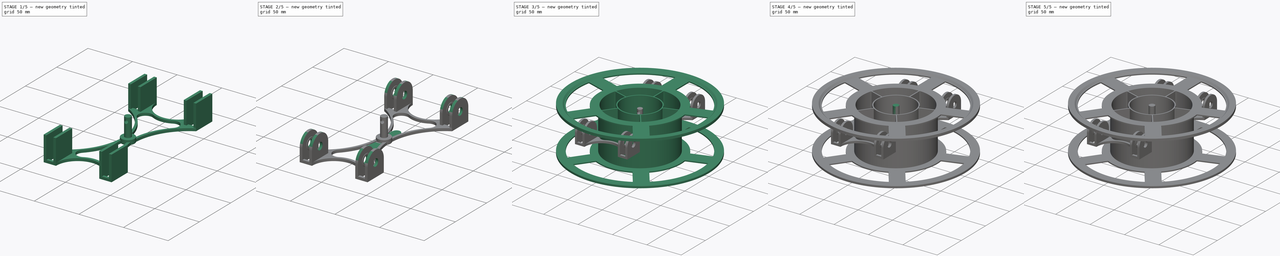
[diagram: build sequence overview — one tinted view per stage of 5, left to right]
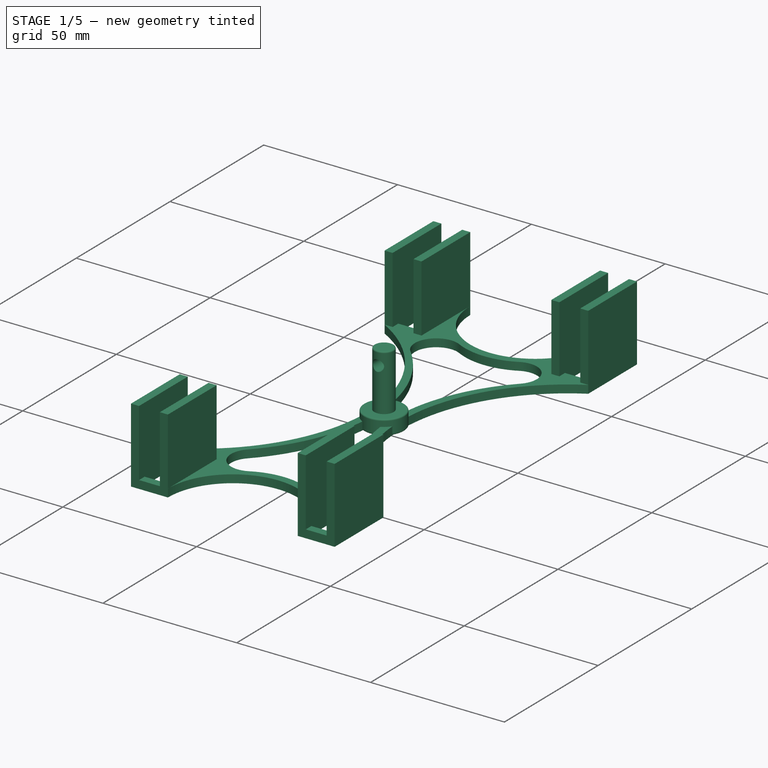
[diagram: stage 1 of 5 — iso view after this stage's code; geometry added in this stage tinted green]
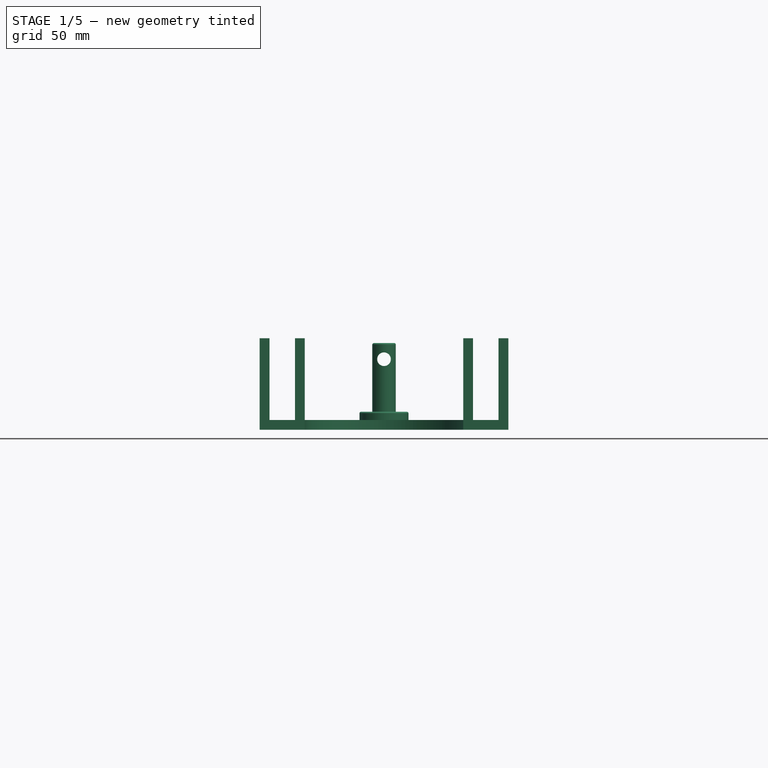
[diagram: stage 1 of 5 — front view after this stage's code; geometry added in this stage tinted green]
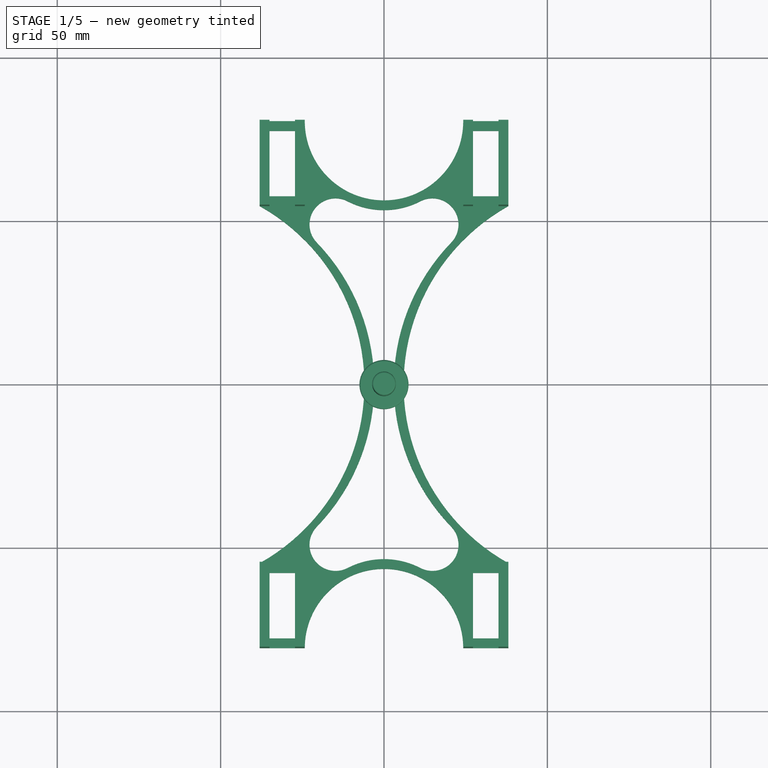
[diagram: stage 1 of 5 — top view after this stage's code; geometry added in this stage tinted green]
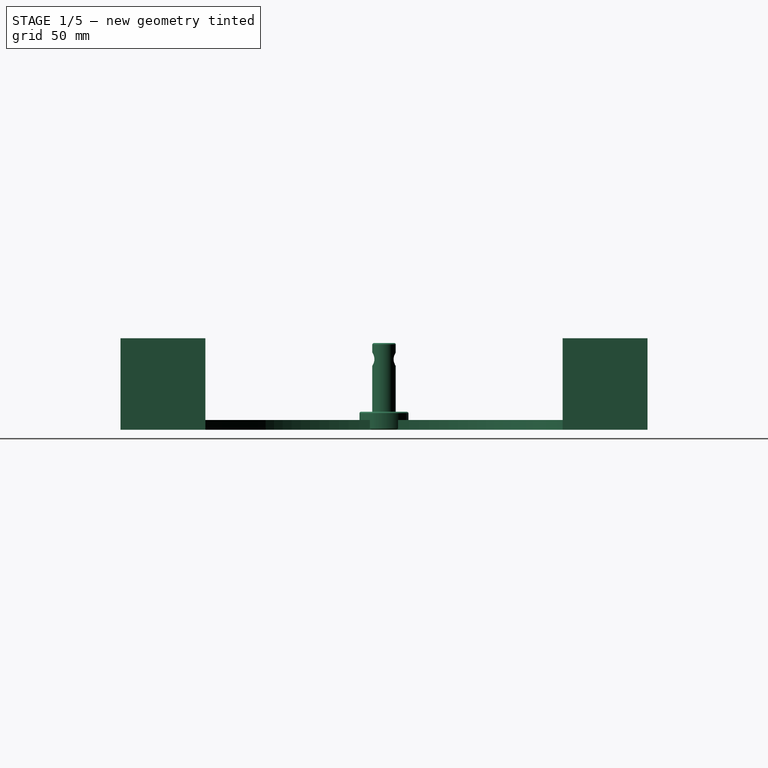
[diagram: stage 1 of 5 — right view after this stage's code; geometry added in this stage tinted green]
FCSTD DOCUMENT  (FreeCAD 1.0R39285 (Git))
Label: Spool Roller, Printed Axles
License: Creative Commons Attribution 4.0
LicenseURL: https://creativecommons.org/licenses/by/4.0/
objects: PartDesign::CoordinateSystem×24, Sketcher::SketchObject×21, App::Link×14, PartDesign::Body×8, PartDesign::Pad×8, PartDesign::Revolution×6, PartDesign::Pocket×4, App::DocumentObjectGroup×3, PartDesign::Groove×2, Spreadsheet::Sheet×1, App::FeaturePython×1, PartDesign::PolarPattern×1, PartDesign::Plane×1, Part::Part2DObjectPython×1, App::Part×1
note: 138 computed .brp shape members not serialized (recipe doc carries the construction recipe); baked Part::Feature solids carry a one-line shape summary decoded from their .brp

FEATURE [PartDesign::CoordinateSystem] Face
  AttacherType = Attacher::AttachEngine3D
  AttachmentSupport = -> [Groove]
  MapMode = 45
  Placement = pos=(1.089e-13,2.83e-14,0) rot=(0,0,1;0rad)
FEATURE [PartDesign::Body] Body004  label="Nut"
  AllowCompound = false
  Group = -> [Sketch024,Pad,Sketch025,Revolution005,Sketch026,Groove,Face]
  Origin = -> Origin005
  Tip = -> Groove
FEATURE [PartDesign::CoordinateSystem] Face006
  AttacherType = Attacher::AttachEngine3D
  AttachmentSupport = -> [Groove001]
  MapMode = 11
  Placement = pos=(0,0,5.5) rot=(0,0,1;1.5708rad)
FEATURE [PartDesign::Body] Body006  label="Bolt"
  AllowCompound = false
  Group = -> [Sketch027,Sketch028,Pad008,Sketch029,Pad009,Sketch030,Groove001,Face006]
  Origin = -> Origin007
  Tip = -> Groove001
FEATURE [PartDesign::CoordinateSystem] Center002
  AttacherType = Attacher::AttachEngine3D
  AttachmentSupport = -> [PolarPattern]
  MapMode = 45
  Placement = pos=(1.07e-14,2e-16,-1e-16) rot=(0,0,1;0rad)
FEATURE [PartDesign::Body] Body005  label="Spool"
  AllowCompound = false
  Group = -> [Sketch022,Revolution004,Sketch023,Pocket002,PolarPattern,Center002]
  Origin = -> Origin006
  Tip = -> PolarPattern
FEATURE [Sketcher::SketchObject] Sketch031
  ArcFitTolerance = 1e-06
  AttachmentSupport = -> [XY_Plane008]
  FullyConstrained = true
  MakeInternals = false
  MapMode = 5
  expr: Constraints[119] = <<Spreadsheet>>.BaseArmWidth
  expr: Constraints[120] = <<Spreadsheet>>.BaseArmWidth
  expr: Constraints[25] = <<Spreadsheet>>.BaseFootLength
  expr: Constraints[26] = <<Spreadsheet>>.BaseFootWidth
  expr: Constraints[29] = <<Spreadsheet>>.BaseBearingsXDistance
  expr: Constraints[32] = <<MainSketch001>>.Constraints.BearingDistance
  expr: Constraints[53] = <<Spreadsheet>>.BaseArmWidth
  expr: Constraints[59] = <<Spreadsheet>>.BaseArmWidth
  expr: Constraints[67] = <<Spreadsheet>>.BaseArmWidth
  expr: Constraints[68] = <<Spreadsheet>>.BaseArmWidth * 2
  sketch-geometry (46):
    g0: LineSegment StartX=-38.05 StartY=54.6535 StartZ=0 EndX=-38.05 EndY=80.6535 EndZ=0
    g1: LineSegment StartX=-38.05 StartY=80.6535 StartZ=0 EndX=-24.25 EndY=80.6535 EndZ=0
    g2: LineSegment StartX=24.25 StartY=80.6535 StartZ=0 EndX=38.05 EndY=80.6535 EndZ=0
    g3: LineSegment StartX=38.05 StartY=80.6535 StartZ=0 EndX=38.05 EndY=54.6535 EndZ=0
    g4: LineSegment StartX=-38.05 StartY=-54.6535 StartZ=0 EndX=-38.05 EndY=-80.6535 EndZ=0
    g5: LineSegment StartX=-38.05 StartY=-80.6535 StartZ=0 EndX=-24.25 EndY=-80.6535 EndZ=0
    g6: LineSegment StartX=24.25 StartY=-80.6535 StartZ=0 EndX=38.05 EndY=-80.6535 EndZ=0
    g7: LineSegment StartX=38.05 StartY=-80.6535 StartZ=0 EndX=38.05 EndY=-54.6535 EndZ=0
    g8: ArcOfCircle CenterX=3e-16 CenterY=80.6535 CenterZ=0 NormalX=0 NormalY=0 NormalZ=1 AngleXU=0 Radius=24.25 StartAngle=3.14159 EndAngle=6.28319
    g9: ArcOfCircle CenterX=6e-16 CenterY=-80.6535 CenterZ=0 NormalX=0 NormalY=0 NormalZ=1 AngleXU=0 Radius=24.25 StartAngle=6.28319 EndAngle=9.42478
    g10: GeomPoint X=-31.15 Y=80.6535 Z=0
    g11: GeomPoint X=31.15 Y=80.6535 Z=0
    g12: GeomPoint X=-38.05 Y=67.6535 Z=0
    g13: GeomPoint X=-38.05 Y=-67.6535 Z=0
    g14: ArcOfCircle CenterX=-65.6242 CenterY=0 CenterZ=0 NormalX=0 NormalY=0 NormalZ=1 AngleXU=0 Radius=62.6242 StartAngle=5.51559 EndAngle=7.05078
    g15: ArcOfCircle CenterX=65.6242 CenterY=0 CenterZ=0 NormalX=0 NormalY=0 NormalZ=1 AngleXU=0 Radius=62.6242 StartAngle=2.37399 EndAngle=3.90919
    g16: ArcOfCircle CenterX=0 CenterY=-77.6535 CenterZ=0 NormalX=0 NormalY=0 NormalZ=1 AngleXU=0 Radius=24.25 StartAngle=1.09312 EndAngle=2.04847
    g17: ArcOfCircle CenterX=0 CenterY=77.6535 CenterZ=0 NormalX=0 NormalY=0 NormalZ=1 AngleXU=0 Radius=24.25 StartAngle=4.23471 EndAngle=5.19007
    g18: ArcOfCircle CenterX=-14.8175 CenterY=49.0295 CenterZ=0 NormalX=0 NormalY=0 NormalZ=1 AngleXU=0 Radius=7.98185 StartAngle=1.09312 EndAngle=3.90919
    g19: ArcOfCircle CenterX=14.8175 CenterY=49.0295 CenterZ=0 NormalX=0 NormalY=0 NormalZ=1 AngleXU=0 Radius=7.98185 StartAngle=5.51559 EndAngle=8.33166
    g20: ArcOfCircle CenterX=-14.8175 CenterY=-49.0295 CenterZ=0 NormalX=0 NormalY=0 NormalZ=1 AngleXU=0 Radius=7.98185 StartAngle=2.37399 EndAngle=5.19007
    g21: ArcOfCircle CenterX=14.8175 CenterY=-49.0295 CenterZ=0 NormalX=0 NormalY=0 NormalZ=1 AngleXU=0 Radius=7.98185 StartAngle=4.23471 EndAngle=7.05078
    g22: LineSegment [constr] StartX=38.05 StartY=54.6535 StartZ=0 EndX=24.25 EndY=54.6535 EndZ=0
    g23: LineSegment [constr] StartX=24.25 StartY=54.6535 StartZ=0 EndX=24.25 EndY=80.6535 EndZ=0
    g24: ArcOfCircle CenterX=-68.6242 CenterY=-2.3e-15 CenterZ=0 NormalX=0 NormalY=0 NormalZ=1 AngleXU=0 Radius=62.6242 StartAngle=5.22243 EndAngle=7.34394
    g25: ArcOfCircle CenterX=68.6242 CenterY=-8e-16 CenterZ=0 NormalX=0 NormalY=0 NormalZ=1 AngleXU=0 Radius=62.6242 StartAngle=2.08084 EndAngle=4.20234
    g26: LineSegment StartX=-27.25 StartY=57.6535 StartZ=0 EndX=-27.25 EndY=77.6535 EndZ=0
    g27: LineSegment StartX=-27.25 StartY=77.6535 StartZ=0 EndX=-35.05 EndY=77.6535 EndZ=0
    g28: LineSegment StartX=-35.05 StartY=77.6535 StartZ=0 EndX=-35.05 EndY=57.6535 EndZ=0
    g29: LineSegment StartX=-35.05 StartY=57.6535 StartZ=0 EndX=-27.25 EndY=57.6535 EndZ=0
    g30: GeomPoint [constr] X=-31.15 Y=67.6535 Z=0
    g31: LineSegment StartX=35.05 StartY=57.6535 StartZ=0 EndX=35.05 EndY=77.6535 EndZ=0
    g32: LineSegment StartX=35.05 StartY=77.6535 StartZ=0 EndX=27.25 EndY=77.6535 EndZ=0
    g33: LineSegment StartX=27.25 StartY=77.6535 StartZ=0 EndX=27.25 EndY=57.6535 EndZ=0
    g34: LineSegment StartX=27.25 StartY=57.6535 StartZ=0 EndX=35.05 EndY=57.6535 EndZ=0
    g35: GeomPoint [constr] X=31.15 Y=67.6535 Z=0
    g36: LineSegment StartX=-27.25 StartY=-77.6535 StartZ=0 EndX=-27.25 EndY=-57.6535 EndZ=0
    g37: LineSegment StartX=-27.25 StartY=-57.6535 StartZ=0 EndX=-35.05 EndY=-57.6535 EndZ=0
    g38: LineSegment StartX=-35.05 StartY=-57.6535 StartZ=0 EndX=-35.05 EndY=-77.6535 EndZ=0
    g39: LineSegment StartX=-35.05 StartY=-77.6535 StartZ=0 EndX=-27.25 EndY=-77.6535 EndZ=0
    g40: GeomPoint [constr] X=-31.15 Y=-67.6535 Z=0
    g41: LineSegment StartX=35.05 StartY=-77.6535 StartZ=0 EndX=35.05 EndY=-57.6535 EndZ=0
    g42: LineSegment StartX=35.05 StartY=-57.6535 StartZ=0 EndX=27.25 EndY=-57.6535 EndZ=0
    g43: LineSegment StartX=27.25 StartY=-57.6535 StartZ=0 EndX=27.25 EndY=-77.6535 EndZ=0
    g44: LineSegment StartX=27.25 StartY=-77.6535 StartZ=0 EndX=35.05 EndY=-77.6535 EndZ=0
    g45: GeomPoint [constr] X=31.15 Y=-67.6535 Z=0
  constraints (121):
    c: Vertical(g0)
    c: Coincident(g0,g1)
    c: Horizontal(g1)
    c: Horizontal(g2)
    c: Coincident(g2,g3)
    c: Vertical(g4)
    c: Coincident(g4,g5)
    c: Horizontal(g5)
    c: Coincident(g6,g7)
    c: Vertical(g7)
    c: Coincident(g8,g1)
    c: Coincident(g8,g2)
    c: Coincident(g9,g5)
    c: Coincident(g9,g6)
    c: Equal(g1,g2)
    c: Equal(g2,g6)
    c: Equal(g6,g5)
    c: Equal(g4,g0)
    c: Equal(g0,g3)
    c: Equal(g3,g7)
    c: Equal(g9,g8)
    c: Vertical(g3)
    c: Horizontal(g6)
    c: Symmetric(g6,g5,g-2)
    c: Symmetric(g7,g3,g-1)
    c: DistanceY(g0,g0) = 26
    c: DistanceX(g1,g1) = 13.8
    c: Symmetric(g1,g1,g10)
    c: Symmetric(g2,g2,g11)
    c: DistanceX(g10,g11) = 62.3
    c: Symmetric(g0,g0,g12)
    c: Symmetric(g4,g4,g13)
    c: DistanceY(g13,g12) = 135.307
    c: Perpendicular(g8,g1)
    c: Vertical(g5,g1)
    c: Tangent(g19,g15) = 1.5708
    c: Tangent(g19,g17) = 1.5708
    c: Tangent(g18,g14) = 1.5708
    c: Tangent(g18,g17) = 1.5708
    c: Tangent(g20,g14) = 1.5708
    c: Tangent(g20,g16) = 1.5708
    c: Tangent(g21,g16) = 1.5708
    c: Tangent(g21,g15) = 1.5708
    c: Equal(g9,g16)
    c: Equal(g16,g17)
    c: PointOnObject(g16,g-2)
    c: PointOnObject(g15,g-1)
    c: Equal(g14,g15)
    c: Equal(g18,g19)
    c: Equal(g19,g21)
    c: Equal(g21,g20)
    c: Symmetric(g15,g14,g-2)
    c: Symmetric(g16,g17,g-1)
    c: DistanceY(g9,g16) = 3
    c: Coincident(g22,g3)
    c: Horizontal(g22)
    c: Coincident(g23,g22)
    c: Coincident(g23,g2)
    c: Vertical(g23)
    c: Distance(g22,g19) = 3
    c: Horizontal(g1,g2)
    c: Coincident(g24,g0)
    c: Coincident(g24,g4)
    c: Coincident(g25,g3)
    c: Coincident(g25,g7)
    c: Equal(g25,g15)
    c: Equal(g14,g24)
    c: DistanceX(g15,g25) = 3
    c: Distance(g15,g14) = 6
    c: Coincident(g26,g27)
    c: Coincident(g27,g28)
    c: Coincident(g28,g29)
    c: Coincident(g29,g26)
    c: Vertical(g26)
    c: Vertical(g28)
    c: Horizontal(g27)
    c: Horizontal(g29)
    c: Symmetric(g28,g26,g30)
    c: Coincident(g31,g32)
    c: Coincident(g32,g33)
    c: Coincident(g33,g34)
    c: Coincident(g34,g31)
    c: Vertical(g31)
    c: Vertical(g33)
    c: Horizontal(g32)
    c: Horizontal(g34)
    c: Symmetric(g33,g31,g35)
    c: Coincident(g36,g37)
    c: Coincident(g37,g38)
    c: Coincident(g38,g39)
    c: Coincident(g39,g36)
    c: Vertical(g36)
    c: Vertical(g38)
    c: Horizontal(g37)
    c: Horizontal(g39)
    c: Symmetric(g38,g36,g40)
    c: Coincident(g41,g42)
    c: Coincident(g42,g43)
    c: Coincident(g43,g44)
    c: Coincident(g44,g41)
    c: Vertical(g41)
    c: Vertical(g43)
    c: Horizontal(g42)
    c: Horizontal(g44)
    c: Symmetric(g43,g41,g45)
    c: Horizontal(g13,g40)
    c: Horizontal(g40,g45)
    c: Horizontal(g12,g30)
    c: Horizontal(g30,g35)
    c: Vertical(g35,g11)
    c: Vertical(g11,g45)
    c: Vertical(g40,g30)
    c: Vertical(g30,g10)
    c: Equal(g37,g42)
    c: Equal(g42,g34)
    c: Equal(g34,g29)
    c: Equal(g41,g36)
    c: Equal(g36,g26)
    c: Equal(g26,g31)
    c: DistanceX(g41,g6) = 3
    c: DistanceY(g6,g41) = 3
FEATURE [PartDesign::Pad] Pad010
  Direction = (0,0,1)
  Length = 3
  Length2 = 10
  Profile = -> Sketch031
  ReferenceAxis = -> Sketch031 [N_Axis]
  Suppressed = false
  Type = 0
  expr: Length = <<Spreadsheet>>.BaseBottomThickness
FEATURE [Sketcher::SketchObject] Sketch032  label="MainSketch001"
  ArcFitTolerance = 1e-06
  AttachmentSupport = -> [YZ_Plane008]
  FullyConstrained = true
  MakeInternals = false
  MapMode = 5
  Placement = pos=(0,0,0) rot=(0.57735,0.57735,0.57735;2.0944rad)
  expr: Constraints[1] = <<Spreadsheet>>.BallBearingOuterDiameter
  expr: Constraints[25] = <<Spreadsheet>>.BaseBottomThickness
  expr: Constraints[27] = <<Spreadsheet>>.BallBearingZCenter
  expr: Constraints[6] = <<Spreadsheet>>.SpoolOuterDiameter
  sketch-geometry (11):
    g0: Circle CenterX=67.6535 CenterY=15 CenterZ=0 NormalX=0 NormalY=0 NormalZ=1 AngleXU=0 Radius=11
    g1: Circle CenterX=-67.6535 CenterY=15 CenterZ=0 NormalX=0 NormalY=0 NormalZ=1 AngleXU=0 Radius=11
    g2: Circle CenterX=0 CenterY=103 CenterZ=0 NormalX=0 NormalY=0 NormalZ=1 AngleXU=0 Radius=100
    g3: GeomPoint X=0 Y=3 Z=0
    g4: LineSegment [constr] StartX=67.6535 StartY=15 StartZ=0 EndX=0 EndY=15 EndZ=0
    g5: LineSegment [constr] StartX=0 StartY=15 StartZ=0 EndX=0 EndY=103 EndZ=0
    g6: LineSegment [constr] StartX=0 StartY=15 StartZ=0 EndX=0 EndY=3 EndZ=0
    g7: LineSegment [constr] StartX=0 StartY=3 StartZ=0 EndX=67.6535 EndY=15 EndZ=0
    g8: LineSegment StartX=67.6535 StartY=15 StartZ=0 EndX=60.9491 EndY=23.7207 EndZ=0
    g9: LineSegment [constr] StartX=60.9491 StartY=23.7207 StartZ=0 EndX=0 EndY=103 EndZ=0
    g10: LineSegment [constr] StartX=0 StartY=0 StartZ=0 EndX=0 EndY=3 EndZ=0
  constraints (29):
    c: Symmetric(g1,g0,g-2)
    c: Diameter(g0) = 22
    c: Equal(g0,g1)
    c: Distance(g0,g-1) = 4
    c: PointOnObject(g2,g-2)
    c: Tangent(g2,g0)
    c: Diameter(g2) = 200
    c: DistanceX(g1,g0) = 135.307  'BearingDistance'
    c: DistanceY(g2) = 103  'SpoolZCenter'
    c: PointOnObject(g3,g2)
    c: PointOnObject(g3,g-2)
    c: PointOnObject(g4,g-2)
    c: Coincident(g4,g5)
    c: Coincident(g4,g6)
    c: Coincident(g6,g3)
    c: Coincident(g6,g7)
    c: Horizontal(g4)
    c: Coincident(g7,g0)
    c: Coincident(g8,g4)
    c: PointOnObject(g8,g2)
    c: Coincident(g9,g2)
    c: Tangent(g9,g8) = -1.5708
    c: Coincident(g4,g0)
    c: Coincident(g10,g-1)
    c: Coincident(g10,g3)
    c: Distance(g10) = 3
    c: Coincident(g5,g2)
    c: DistanceY(g1) = 15
    c: Distance(g9) = 100
FEATURE [Sketcher::SketchObject] Sketch033
  ArcFitTolerance = 1e-06
  AttachmentSupport = -> [Pad010]
  ExternalGeometry = -> [Pad010]
  FullyConstrained = true
  MakeInternals = false
  MapMode = 5
  Placement = pos=(0,0,3) rot=(0,0,1;0rad)
  expr: Constraints[86] = <<Spreadsheet>>.BearingMountsThickness
  sketch-geometry (32):
    g0: LineSegment StartX=-24.25 StartY=-80.6535 StartZ=0 EndX=-24.25 EndY=-54.6535 EndZ=0
    g1: LineSegment StartX=-24.25 StartY=-54.6535 StartZ=0 EndX=-27.25 EndY=-54.6535 EndZ=0
    g2: LineSegment StartX=-27.25 StartY=-54.6535 StartZ=0 EndX=-27.25 EndY=-80.6535 EndZ=0
    g3: LineSegment StartX=-27.25 StartY=-80.6535 StartZ=0 EndX=-24.25 EndY=-80.6535 EndZ=0
    g4: LineSegment StartX=24.25 StartY=-80.6535 StartZ=0 EndX=27.25 EndY=-80.6535 EndZ=0
    g5: LineSegment StartX=27.25 StartY=-80.6535 StartZ=0 EndX=27.25 EndY=-54.6535 EndZ=0
    g6: LineSegment StartX=27.25 StartY=-54.6535 StartZ=0 EndX=24.25 EndY=-54.6535 EndZ=0
    g7: LineSegment StartX=24.25 StartY=-54.6535 StartZ=0 EndX=24.25 EndY=-80.6535 EndZ=0
    g8: LineSegment StartX=38.05 StartY=-80.6535 StartZ=0 EndX=38.05 EndY=-54.6535 EndZ=0
    g9: LineSegment StartX=38.05 StartY=-54.6535 StartZ=0 EndX=35.05 EndY=-54.6535 EndZ=0
    g10: LineSegment StartX=35.05 StartY=-54.6535 StartZ=0 EndX=35.05 EndY=-80.6535 EndZ=0
    g11: LineSegment StartX=35.05 StartY=-80.6535 StartZ=0 EndX=38.05 EndY=-80.6535 EndZ=0
    g12: LineSegment StartX=38.05 StartY=80.6535 StartZ=0 EndX=35.05 EndY=80.6535 EndZ=0
    g13: LineSegment StartX=35.05 StartY=80.6535 StartZ=0 EndX=35.05 EndY=54.6535 EndZ=0
    g14: LineSegment StartX=35.05 StartY=54.6535 StartZ=0 EndX=38.05 EndY=54.6535 EndZ=0
    g15: LineSegment StartX=38.05 StartY=54.6535 StartZ=0 EndX=38.05 EndY=80.6535 EndZ=0
    g16: LineSegment StartX=24.25 StartY=80.6535 StartZ=0 EndX=24.25 EndY=54.6535 EndZ=0
    g17: LineSegment StartX=24.25 StartY=54.6535 StartZ=0 EndX=27.25 EndY=54.6535 EndZ=0
    g18: LineSegment StartX=27.25 StartY=54.6535 StartZ=0 EndX=27.25 EndY=80.6535 EndZ=0
    g19: LineSegment StartX=27.25 StartY=80.6535 StartZ=0 EndX=24.25 EndY=80.6535 EndZ=0
    g20: LineSegment StartX=-38.05 StartY=80.6535 StartZ=0 EndX=-38.05 EndY=54.6535 EndZ=0
    g21: LineSegment StartX=-38.05 StartY=54.6535 StartZ=0 EndX=-35.05 EndY=54.6535 EndZ=0
    g22: LineSegment StartX=-35.05 StartY=54.6535 StartZ=0 EndX=-35.05 EndY=80.6535 EndZ=0
    g23: LineSegment StartX=-35.05 StartY=80.6535 StartZ=0 EndX=-38.05 EndY=80.6535 EndZ=0
    g24: LineSegment StartX=-24.25 StartY=80.6535 StartZ=0 EndX=-27.25 EndY=80.6535 EndZ=0
    g25: LineSegment StartX=-27.25 StartY=80.6535 StartZ=0 EndX=-27.25 EndY=54.6535 EndZ=0
    g26: LineSegment StartX=-27.25 StartY=54.6535 StartZ=0 EndX=-24.25 EndY=54.6535 EndZ=0
    g27: LineSegment StartX=-24.25 StartY=54.6535 StartZ=0 EndX=-24.25 EndY=80.6535 EndZ=0
    g28: LineSegment StartX=-38.05 StartY=-80.6535 StartZ=0 EndX=-35.05 EndY=-80.6535 EndZ=0
    g29: LineSegment StartX=-35.05 StartY=-80.6535 StartZ=0 EndX=-35.05 EndY=-54.6535 EndZ=0
    g30: LineSegment StartX=-35.05 StartY=-54.6535 StartZ=0 EndX=-38.05 EndY=-54.6535 EndZ=0
    g31: LineSegment StartX=-38.05 StartY=-54.6535 StartZ=0 EndX=-38.05 EndY=-80.6535 EndZ=0
  constraints (88):
    c: Coincident(g0,g1)
    c: Coincident(g1,g2)
    c: Coincident(g2,g3)
    c: Coincident(g3,g0)
    c: Vertical(g0)
    c: Vertical(g2)
    c: Horizontal(g1)
    c: Horizontal(g3)
    c: Coincident(g4,g5)
    c: Coincident(g5,g6)
    c: Coincident(g6,g7)
    c: Coincident(g7,g4)
    c: Horizontal(g4)
    c: Horizontal(g6)
    c: Vertical(g5)
    c: Vertical(g7)
    c: Coincident(g4,g-5)
    c: Coincident(g8,g9)
    c: Coincident(g9,g10)
    c: Coincident(g10,g11)
    c: Coincident(g11,g8)
    c: Vertical(g8)
    c: Vertical(g10)
    c: Horizontal(g9)
    c: Horizontal(g11)
    c: Coincident(g8,g-5)
    c: Coincident(g12,g13)
    c: Coincident(g13,g14)
    c: Coincident(g14,g15)
    c: Coincident(g15,g12)
    c: Horizontal(g12)
    c: Horizontal(g14)
    c: Vertical(g13)
    c: Vertical(g15)
    c: Coincident(g12,g-3)
    c: Coincident(g16,g17)
    c: Coincident(g17,g18)
    c: Coincident(g18,g19)
    c: Coincident(g19,g16)
    c: Vertical(g16)
    c: Vertical(g18)
    c: Horizontal(g17)
    c: Horizontal(g19)
    c: Coincident(g16,g-3)
    c: Coincident(g20,g21)
    c: Coincident(g21,g22)
    c: Coincident(g22,g23)
    c: Coincident(g23,g20)
    c: Vertical(g22)
    c: Horizontal(g21)
    c: Horizontal(g23)
    c: Coincident(g20,g-4)
    c: Coincident(g24,g25)
    c: Coincident(g25,g26)
    c: Coincident(g26,g27)
    c: Coincident(g27,g24)
    c: Horizontal(g24)
    c: Horizontal(g26)
    c: Vertical(g25)
    c: Vertical(g27)
    c: Equal(g20,g25)
    c: Equal(g25,g16)
    c: Equal(g16,g13)
    c: Equal(g2,g7)
    c: Equal(g7,g10)
    c: Equal(g9,g6)
    c: Equal(g6,g1)
    c: Equal(g26,g21)
    c: Equal(g21,g17)
    c: Equal(g17,g14)
    c: Coincident(g20,g-4)
    c: Coincident(g24,g-6)
    c: Coincident(g28,g29)
    c: Coincident(g29,g30)
    c: Coincident(g30,g31)
    c: Coincident(g31,g28)
    c: Horizontal(g28)
    c: Horizontal(g30)
    c: Vertical(g29)
    c: Vertical(g31)
    c: Coincident(g28,g-7)
    c: Equal(g31,g2)
    c: Equal(g31,g20)
    c: Coincident(g0,g-7)
    c: Equal(g1,g30)
    c: Equal(g30,g21)
    c: DistanceX(g23,g23) = 3
    c: DistanceX(g21,g25) = 7.8
FEATURE [PartDesign::Pad] Pad011
  BaseFeature = -> Pad010
  Direction = (0,0,1)
  Length = 25
  Length2 = 10
  Profile = -> Sketch033
  ReferenceAxis = -> Sketch033 [N_Axis]
  Suppressed = false
  Type = 0
  expr: Length = <<Spreadsheet>>.BallBearingOuterDiameter + <<Spreadsheet>>.BearingMountsExtraDiameter - <<Spreadsheet>>.BaseBottomThickness + <<Spreadsheet>>.BearingMountsExtraHeight
FEATURE [PartDesign::CoordinateSystem] SpoolCenter
  AttacherType = Attacher::AttachEngine3D
  AttachmentSupport = -> [Sketch032]
  MapMode = 11
  Placement = pos=(0,0,103) rot=(0.707107,0,0.707107;3.14159rad)
FEATURE [PartDesign::Body] Body007  label="Base"
  AllowCompound = false
  Group = -> [Sketch031,Pad010,Sketch032,Sketch033,Pad011,Sketch034,Pocket003,DatumPlane001,Sketch035,Revolution006,Sketch036,Revolution007,Bottom_Center001,Bearing005,Bearing006,Bearing007,Bearing008,Washer1a001,Washer1b001,Washer2a001,Washer2b001,Washer3a001,Washer3b001,Washer4a001,Washer4b001,Sketch037,Pad012,ShapeString001,Pocket004,SpoolCenter]
  Origin = -> Origin008
  Tip = -> Pocket004
FEATURE [App::Link] Base  label="Base001"
  AttachedBy = #Bottom_Center001
  AttachedTo = Parent Assembly#LCS_Origin
  LinkPlacement = pos=(0,3.7e-15,0) rot=(0,0,1;0rad)
  LinkedObject = -> Body007
  Placement = pos=(0,3.7e-15,0) rot=(0,0,1;0rad)
  SolverId = Asm4EE
  expr: Placement = LCS_Origin.Placement * AttachmentOffset * Bottom_Center001.Placement ^ -1
FEATURE [App::Link] Ball_Bearing  label="Ball Bearing001"
  AttachedBy = #Center
  AttachedTo = Base#Bearing007
  AttachmentOffset = pos=(0,0,0) rot=(1,0,0;1.5708rad)
  LinkPlacement = pos=(-31.15,67.6535,15) rot=(0.57735,-0.57735,-0.57735;4.18879rad)
  LinkedObject = -> Body
  Placement = pos=(-31.15,67.6535,15) rot=(0.57735,-0.57735,-0.57735;4.18879rad)
  SolverId = Asm4EE
  expr: Placement = Base.Placement * Bearing007.Placement * AttachmentOffset * Center.Placement ^ -1
FEATURE [App::Link] Ball_Bearing001  label="Ball Bearing002"
  AttachedBy = #Center
  AttachedTo = Base#Bearing006
  AttachmentOffset = pos=(0,0,0) rot=(1,0,0;1.5708rad)
  LinkPlacement = pos=(31.15,67.6535,15) rot=(-0.57735,0.57735,0.57735;2.0944rad)
  LinkedObject = -> Body
  Placement = pos=(31.15,67.6535,15) rot=(-0.57735,0.57735,0.57735;2.0944rad)
  SolverId = Asm4EE
  expr: Placement = Base.Placement * Bearing006.Placement * AttachmentOffset * Center.Placement ^ -1
FEATURE [App::Link] Ball_Bearing002  label="Ball Bearing003"
  AttachedBy = #Center
  AttachedTo = Base#Bearing008
  AttachmentOffset = pos=(0,0,0) rot=(1,0,0;1.5708rad)
  LinkPlacement = pos=(31.15,-67.6535,15) rot=(-0.57735,0.57735,0.57735;2.0944rad)
  LinkedObject = -> Body
  Placement = pos=(31.15,-67.6535,15) rot=(-0.57735,0.57735,0.57735;2.0944rad)
  SolverId = Asm4EE
  expr: Placement = Base.Placement * Bearing008.Placement * AttachmentOffset * Center.Placement ^ -1
FEATURE [App::Link] Ball_Bearing003  label="Ball Bearing004"
  AttachedBy = #Center
  AttachedTo = Base#Bearing005
  AttachmentOffset = pos=(0,0,0) rot=(1,0,0;1.5708rad)
  LinkPlacement = pos=(-31.15,-67.6535,15) rot=(-0.57735,0.57735,0.57735;2.0944rad)
  LinkedObject = -> Body
  Placement = pos=(-31.15,-67.6535,15) rot=(-0.57735,0.57735,0.57735;2.0944rad)
  SolverId = Asm4EE
  expr: Placement = Base.Placement * Bearing005.Placement * AttachmentOffset * Center.Placement ^ -1
FEATURE [App::Link] Spool  label="Spool001"
  AttachedBy = #Center002
  AttachedTo = Base#SpoolCenter
  LinkPlacement = pos=(1e-16,4e-15,103) rot=(0.707107,0,0.707107;3.14159rad)
  LinkedObject = -> Body005
  Placement = pos=(1e-16,4e-15,103) rot=(0.707107,0,0.707107;3.14159rad)
  SolverId = Asm4EE
  expr: Placement = Base.Placement * SpoolCenter.Placement * AttachmentOffset * Center002.Placement ^ -1
FEATURE [Sketcher::SketchObject] Sketch038
  ArcFitTolerance = 1e-06
  AttachmentSupport = -> [XZ_Plane009]
  FullyConstrained = true
  MakeInternals = false
  MapMode = 5
  Placement = pos=(0,0,0) rot=(1,0,0;1.5708rad)
  expr: Constraints[19] = <<Spreadsheet>>.BearingAxleCornerRadius
  expr: Constraints[20] = <<Spreadsheet>>.BoltHeadHeight
  expr: Constraints[21] = <<Spreadsheet>>.BearingAxleHeadDiameter / 2
  expr: Constraints[22] = (<<Spreadsheet>>.BallBearingInnerDiameter - <<Spreadsheet>>.BearingAxleDiameterTolerance * 2) / 2
  expr: Constraints[23] = <<Spreadsheet>>.BearingAxleLength
  sketch-geometry (12):
    g0: LineSegment StartX=0 StartY=0 StartZ=0 EndX=7.00555 EndY=0 EndZ=0
    g1: LineSegment StartX=7.50555 StartY=0.5 StartZ=0 EndX=7.50555 EndY=5 EndZ=0
    g2: LineSegment StartX=7.00555 StartY=5.5 StartZ=0 EndX=3.6 EndY=5.5 EndZ=0
    g3: LineSegment StartX=3.6 StartY=5.5 StartZ=0 EndX=3.6 EndY=26.0379 EndZ=0
    g4: LineSegment StartX=3.1 StartY=26.5379 StartZ=0 EndX=0 EndY=26.5379 EndZ=0
    g5: LineSegment StartX=0 StartY=26.5379 StartZ=0 EndX=0 EndY=0 EndZ=0
    g6: ArcOfCircle CenterX=3.1 CenterY=26.0379 CenterZ=0 NormalX=0 NormalY=0 NormalZ=1 AngleXU=0 Radius=0.5 StartAngle=-9e-16 EndAngle=1.5708
    g7: GeomPoint [constr] X=3.6 Y=26.5379 Z=0
    g8: ArcOfCircle CenterX=7.00555 CenterY=0.5 CenterZ=0 NormalX=0 NormalY=0 NormalZ=1 AngleXU=0 Radius=0.5 StartAngle=4.71239 EndAngle=6.28319
    g9: GeomPoint [constr] X=7.50555 Y=0 Z=0
    g10: ArcOfCircle CenterX=7.00555 CenterY=5 CenterZ=0 NormalX=0 NormalY=0 NormalZ=1 AngleXU=0 Radius=0.5 StartAngle=0 EndAngle=1.5708
    g11: GeomPoint [constr] X=7.50555 Y=5.5 Z=0
  constraints (29):
    c: Coincident(g-1,g0)
    c: PointOnObject(g9,g-1)
    c: Vertical(g1)
    c: Horizontal(g2)
    c: Coincident(g2,g3)
    c: Vertical(g3)
    c: Horizontal(g4)
    c: Coincident(g4,g5)
    c: Coincident(g5,g0)
    c: Vertical(g5)
    c: PointOnObject(g7,g3)
    c: PointOnObject(g7,g4)
    c: Tangent(g3,g6) = -1.5708
    c: Tangent(g4,g6) = -1.5708
    c: PointOnObject(g9,g0)
    c: PointOnObject(g9,g1)
    c: Tangent(g0,g8) = -1.5708
    c: Tangent(g1,g8) = -1.5708
    c: Equal(g8,g6)
    c: Radius(g6) = 0.5
    c: DistanceY(g11) = 5.5
    c: DistanceX(g11) = 7.50555
    c: DistanceX(g2) = 3.6
    c: DistanceY(g2,g4) = 21.0379
    c: PointOnObject(g11,g1)
    c: PointOnObject(g11,g2)
    c: Tangent(g1,g10) = -1.5708
    c: Tangent(g2,g10) = -1.5708
    c: Equal(g8,g10)
FEATURE [PartDesign::Revolution] Revolution008
  Angle = 360
  Angle2 = 60
  Axis = (0,2e-16,1)
  Base = (0,0,0)
  Placement = pos=(0,0,0) rot=(1,0,0;1.5708rad)
  Profile = -> Sketch038
  ReferenceAxis = -> Sketch038 [V_Axis]
  Refine = true
  Reversed = true
  Suppressed = false
  Type = 0
FEATURE [Sketcher::SketchObject] Sketch039
  ArcFitTolerance = 1e-06
  AttachmentSupport = -> [XZ_Plane009]
  ExternalGeometry = -> [Revolution008]
  FullyConstrained = true
  MakeInternals = false
  MapMode = 5
  Placement = pos=(0,0,0) rot=(1,0,0;1.5708rad)
  expr: Constraints[1] = <<Spreadsheet>>.BearingAxlePinHoleDiameter
  expr: Constraints[2] = <<Spreadsheet>>.BearingAxlePinHolePosition
  sketch-geometry (1):
    g0: Circle CenterX=0 CenterY=21.5856 CenterZ=0 NormalX=0 NormalY=0 NormalZ=1 AngleXU=0 Radius=2.08562
  constraints (3):
    c: PointOnObject(g0,g-2)
    c: Diameter(g0) = 4.17124
    c: DistanceY(g-3,g0) = 16.0856
FEATURE [PartDesign::Pocket] Pocket
  BaseFeature = -> Revolution008
  Direction = (0,1,-2e-16)
  Length = 5
  Length2 = 5
  Midplane = true
  Placement = pos=(0,0,0) rot=(1,0,0;1.5708rad)
  Profile = -> Sketch039
  ReferenceAxis = -> Sketch039 [N_Axis]
  Refine = true
  Suppressed = false
  Type = 1
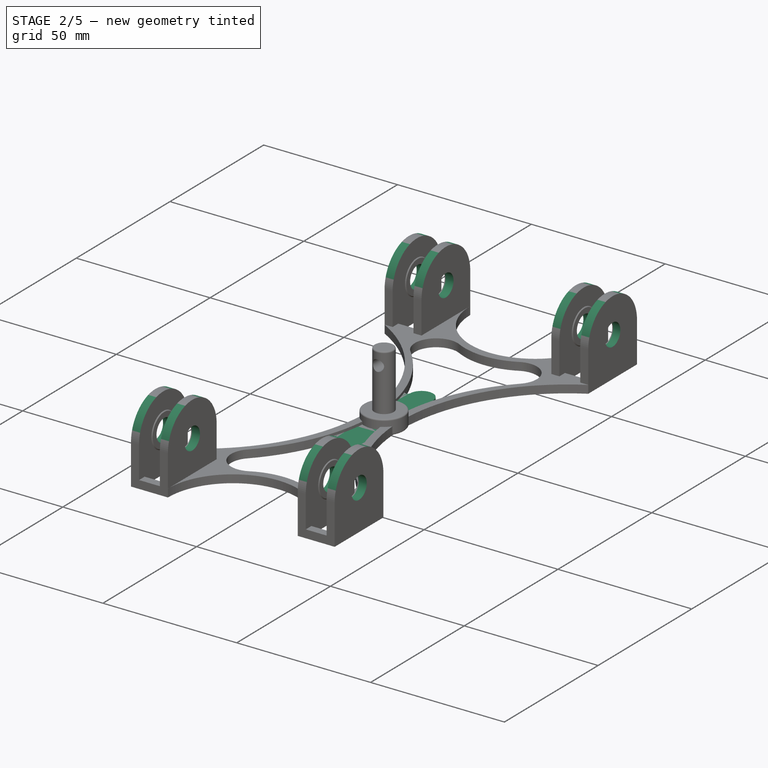
[diagram: stage 2 of 5 — iso view after this stage's code; geometry added in this stage tinted green]
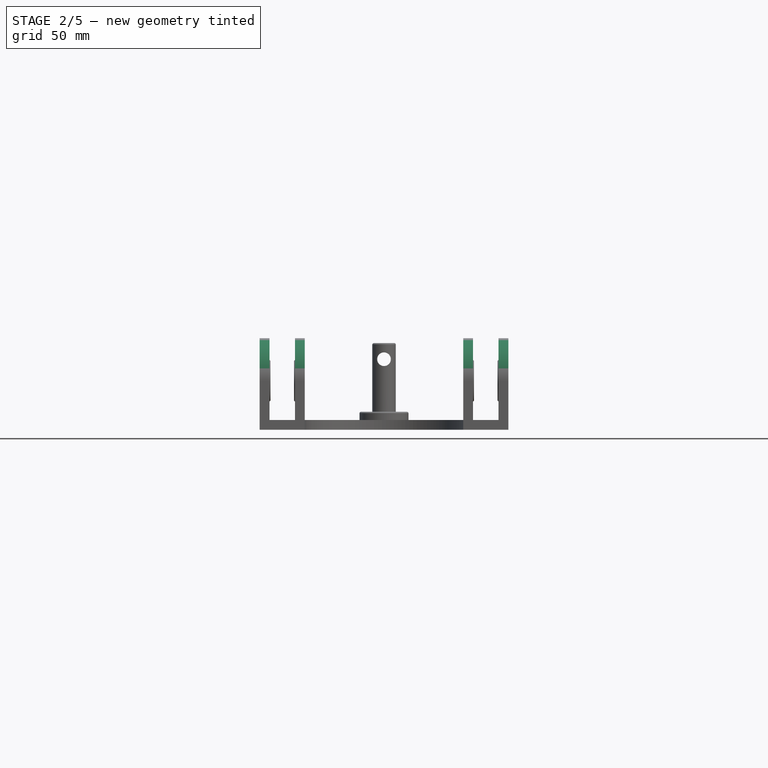
[diagram: stage 2 of 5 — front view after this stage's code; geometry added in this stage tinted green]
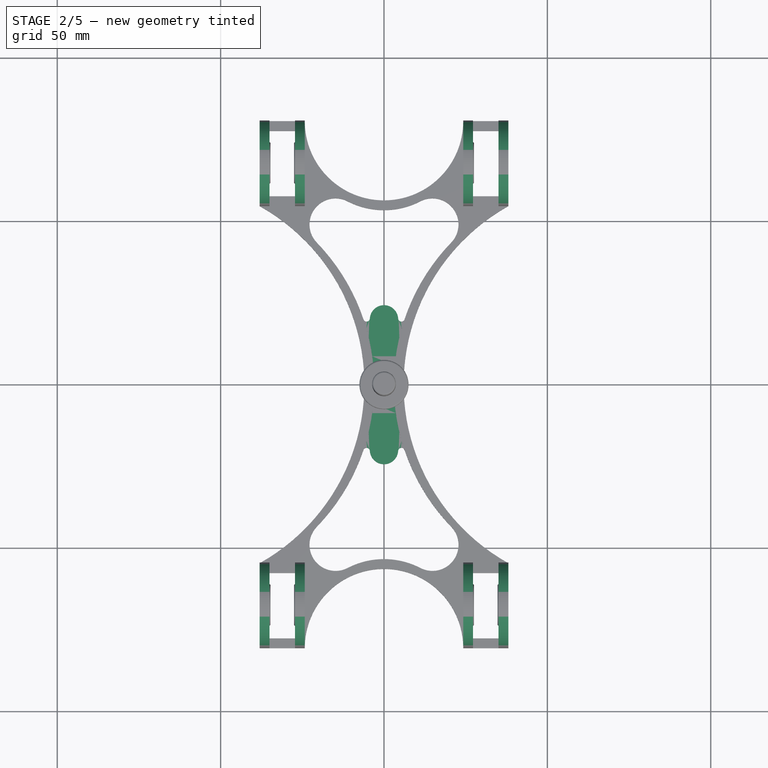
[diagram: stage 2 of 5 — top view after this stage's code; geometry added in this stage tinted green]
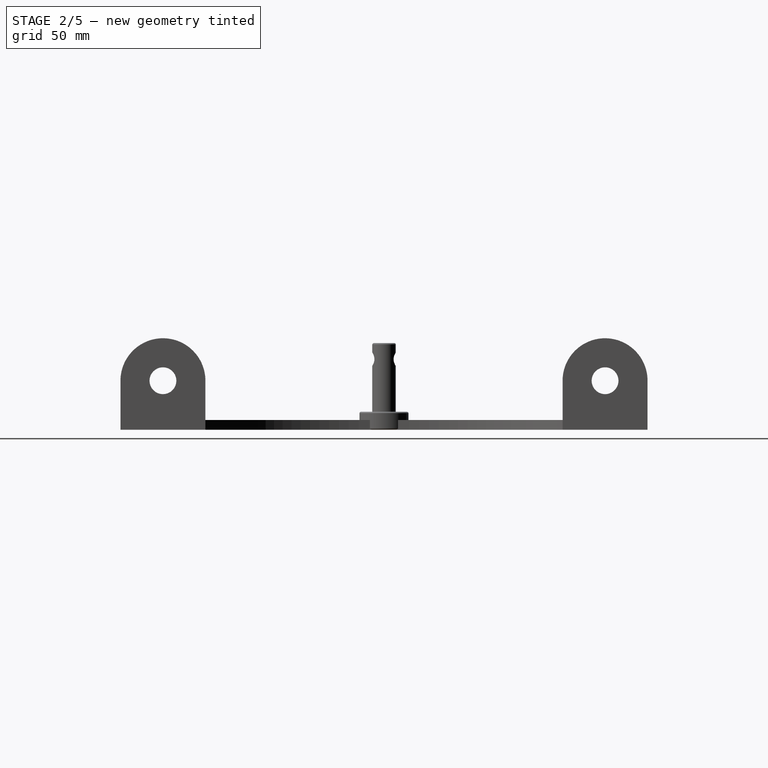
[diagram: stage 2 of 5 — right view after this stage's code; geometry added in this stage tinted green]
FEATURE [Sketcher::SketchObject] Sketch034
  ArcFitTolerance = 1e-06
  AttachmentSupport = -> [Pad011]
  ExternalGeometry = -> [Pad011]
  FullyConstrained = true
  MakeInternals = false
  MapMode = 5
  Placement = pos=(-38.05,0,0) rot=(0.57735,-0.57735,-0.57735;2.0944rad)
  expr: Constraints[12] = <<Spreadsheet>>.BearingMountsHoleDiameter
  sketch-geometry (12):
    g0: ArcOfCircle CenterX=67.6535 CenterY=15 CenterZ=0 NormalX=0 NormalY=0 NormalZ=1 AngleXU=0 Radius=13 StartAngle=0 EndAngle=3.14159
    g1: LineSegment StartX=80.6535 StartY=15 StartZ=0 EndX=80.6535 EndY=28 EndZ=0
    g2: LineSegment StartX=54.6535 StartY=15 StartZ=0 EndX=54.6535 EndY=28 EndZ=0
    g3: LineSegment StartX=54.6535 StartY=28 StartZ=0 EndX=67.6535 EndY=28 EndZ=0
    g4: LineSegment StartX=67.6535 StartY=28 StartZ=0 EndX=80.6535 EndY=28 EndZ=0
    g5: Circle CenterX=67.6535 CenterY=15 CenterZ=0 NormalX=0 NormalY=0 NormalZ=1 AngleXU=0 Radius=4.1
    g6: Circle CenterX=-67.6535 CenterY=15 CenterZ=0 NormalX=0 NormalY=0 NormalZ=1 AngleXU=0 Radius=4.1
    g7: ArcOfCircle CenterX=-67.6535 CenterY=15 CenterZ=0 NormalX=0 NormalY=0 NormalZ=1 AngleXU=0 Radius=13 StartAngle=-7.1e-15 EndAngle=3.14159
    g8: LineSegment StartX=-80.6535 StartY=15 StartZ=0 EndX=-80.6535 EndY=28 EndZ=0
    g9: LineSegment StartX=-54.6535 StartY=15 StartZ=0 EndX=-54.6535 EndY=28 EndZ=0
    g10: LineSegment StartX=-80.6535 StartY=28 StartZ=0 EndX=-67.6535 EndY=28 EndZ=0
    g11: LineSegment StartX=-67.6535 StartY=28 StartZ=0 EndX=-54.6535 EndY=28 EndZ=0
  constraints (26):
    c: Tangent(g1,g0) = -1.5708
    c: Coincident(g1,g-3)
    c: Vertical(g1)
    c: Tangent(g2,g0) = 1.5708
    c: Coincident(g2,g-3)
    c: Vertical(g2)
    c: Coincident(g3,g2)
    c: Tangent(g3,g0) = 1.5708
    c: Coincident(g4,g3)
    c: Coincident(g4,g1)
    c: Horizontal(g4)
    c: Coincident(g5,g0)
    c: Diameter(g5) = 8.2
    c: Coincident(g7,g6)
    c: Coincident(g9,g-4)
    c: Coincident(g8,g-4)
    c: Vertical(g8)
    c: Vertical(g9)
    c: Tangent(g9,g7) = -1.5708
    c: Tangent(g8,g7) = 1.5708
    c: Tangent(g7,g-4)
    c: Coincident(g10,g8)
    c: Symmetric(g-4,g-4,g10)
    c: Coincident(g11,g10)
    c: Coincident(g11,g9)
    c: Equal(g6,g5)
FEATURE [PartDesign::Pocket] Pocket003
  BaseFeature = -> Pad011
  Direction = (1,0,0)
  Length = 5
  Length2 = 5
  Profile = -> Sketch034
  ReferenceAxis = -> Sketch034 [N_Axis]
  Suppressed = false
  Type = 1
FEATURE [PartDesign::Plane] DatumPlane001
  AttachmentSupport = -> [Pocket003]
  Length = 98.2589
  MapMode = 45
  Placement = pos=(0,-1.32e-14,15) rot=(0,0,1;0rad)
  ResizeMode = 0
  Width = 183.466
FEATURE [Sketcher::SketchObject] Sketch035
  ArcFitTolerance = 1e-06
  AttachmentSupport = -> [DatumPlane001]
  ExternalGeometry = -> [Pocket003]
  FullyConstrained = true
  MakeInternals = false
  MapMode = 5
  Placement = pos=(0,-1.32e-14,15) rot=(0,0,1;0rad)
  expr: Constraints[19] = 45 °
  expr: Constraints[20] = <<Spreadsheet>>.BearingMountsFlangeThickness
  expr: Constraints[21] = <<Spreadsheet>>.BearingMountsFlangeDiameter
  sketch-geometry (16):
    g0: LineSegment StartX=-27.25 StartY=71.7535 StartZ=0 EndX=-27.55 EndY=71.7535 EndZ=0
    g1: LineSegment StartX=-27.55 StartY=71.7535 StartZ=0 EndX=-27.55 EndY=73.7535 EndZ=0
    g2: LineSegment StartX=-27.55 StartY=73.7535 StartZ=0 EndX=-27.25 EndY=74.0535 EndZ=0
    g3: LineSegment StartX=-27.25 StartY=74.0535 StartZ=0 EndX=-27.25 EndY=71.7535 EndZ=0
    g4: LineSegment StartX=-35.05 StartY=71.7535 StartZ=0 EndX=-34.75 EndY=71.7535 EndZ=0
    g5: LineSegment StartX=-34.75 StartY=71.7535 StartZ=0 EndX=-34.75 EndY=73.7535 EndZ=0
    g6: LineSegment StartX=-34.75 StartY=73.7535 StartZ=0 EndX=-35.05 EndY=74.0535 EndZ=0
    g7: LineSegment StartX=-35.05 StartY=74.0535 StartZ=0 EndX=-35.05 EndY=71.7535 EndZ=0
    g8: LineSegment StartX=27.25 StartY=71.7535 StartZ=0 EndX=27.55 EndY=71.7535 EndZ=0
    g9: LineSegment StartX=27.55 StartY=71.7535 StartZ=0 EndX=27.55 EndY=73.7535 EndZ=0
    g10: LineSegment StartX=27.55 StartY=73.7535 StartZ=0 EndX=27.25 EndY=74.0535 EndZ=0
    g11: LineSegment StartX=27.25 StartY=74.0535 StartZ=0 EndX=27.25 EndY=71.7535 EndZ=0
    g12: LineSegment StartX=35.05 StartY=71.7535 StartZ=0 EndX=35.35 EndY=71.7535 EndZ=0
    g13: LineSegment StartX=35.35 StartY=71.7535 StartZ=0 EndX=35.35 EndY=73.7535 EndZ=0
    g14: LineSegment StartX=35.35 StartY=73.7535 StartZ=0 EndX=35.05 EndY=74.0535 EndZ=0
    g15: LineSegment StartX=35.05 StartY=74.0535 StartZ=0 EndX=35.05 EndY=71.7535 EndZ=0
  constraints (44):
    c: Horizontal(g0)
    c: Coincident(g0,g1)
    c: Vertical(g1)
    c: Coincident(g1,g2)
    c: Coincident(g2,g3)
    c: Coincident(g3,g0)
    c: Vertical(g3)
    c: Coincident(g-4,g4)
    c: Horizontal(g4)
    c: Coincident(g4,g5)
    c: Coincident(g5,g6)
    c: Coincident(g6,g7)
    c: Coincident(g7,g4)
    c: Vertical(g7)
    c: Vertical(g5)
    c: Equal(g5,g1)
    c: Coincident(g0,g-3)
    c: Equal(g3,g7)
    c: Equal(g6,g2)
    c: Angle(g2,g3) = 0.785398
    c: DistanceX(g0,g0) = 0.3
    c: DistanceY(g1,g1) = 2
    c: Horizontal(g8)
    c: Coincident(g8,g9)
    c: Vertical(g9)
    c: Coincident(g9,g10)
    c: Coincident(g10,g11)
    c: Coincident(g11,g8)
    c: Vertical(g11)
    c: Horizontal(g12)
    c: Coincident(g12,g13)
    c: Coincident(g13,g14)
    c: Coincident(g14,g15)
    c: Coincident(g15,g12)
    c: Vertical(g15)
    c: Vertical(g13)
    c: Equal(g13,g9)
    c: Equal(g11,g15)
    c: Equal(g14,g10)
    c: Angle(g10,g11) = -0.785398
    c: Symmetric(g10,g2,g-2)
    c: Equal(g3,g11)
    c: Symmetric(g14,g6,g-2)
    c: Equal(g8,g0)
FEATURE [PartDesign::Revolution] Revolution006
  Angle = 360
  Angle2 = 60
  Axis = (-1,0,0)
  Base = (-38.05,67.6535,15)
  BaseFeature = -> Pocket003
  Profile = -> Sketch035
  ReferenceAxis = -> Pocket003 [Edge96]
  Reversed = true
  Suppressed = false
  Type = 0
FEATURE [Sketcher::SketchObject] Sketch036
  ArcFitTolerance = 1e-06
  AttachmentSupport = -> [DatumPlane001]
  ExternalGeometry = -> [Revolution006]
  FullyConstrained = true
  MakeInternals = false
  MapMode = 5
  Placement = pos=(0,-1.32e-14,15) rot=(0,0,1;0rad)
  expr: Constraints[20] = <<Spreadsheet>>.BearingMountsFlangeDiameter
  expr: Constraints[21] = <<Spreadsheet>>.BearingMountsFlangeThickness
  sketch-geometry (16):
    g0: LineSegment StartX=-27.25 StartY=-63.5535 StartZ=0 EndX=-27.25 EndY=-61.2535 EndZ=0
    g1: LineSegment StartX=-27.25 StartY=-61.2535 StartZ=0 EndX=-27.55 EndY=-61.5535 EndZ=0
    g2: LineSegment StartX=-27.55 StartY=-61.5535 StartZ=0 EndX=-27.55 EndY=-63.5535 EndZ=0
    g3: LineSegment StartX=-27.55 StartY=-63.5535 StartZ=0 EndX=-27.25 EndY=-63.5535 EndZ=0
    g4: LineSegment StartX=-35.05 StartY=-63.5535 StartZ=0 EndX=-34.75 EndY=-63.5535 EndZ=0
    g5: LineSegment StartX=-34.75 StartY=-63.5535 StartZ=0 EndX=-34.75 EndY=-61.5535 EndZ=0
    g6: LineSegment StartX=-34.75 StartY=-61.5535 StartZ=0 EndX=-35.05 EndY=-61.2535 EndZ=0
    g7: LineSegment StartX=-35.05 StartY=-61.2535 StartZ=0 EndX=-35.05 EndY=-63.5535 EndZ=0
    g8: LineSegment StartX=27.25 StartY=-63.5535 StartZ=0 EndX=27.25 EndY=-61.2535 EndZ=0
    g9: LineSegment StartX=27.25 StartY=-61.2535 StartZ=0 EndX=27.55 EndY=-61.5535 EndZ=0
    g10: LineSegment StartX=27.55 StartY=-61.5535 StartZ=0 EndX=27.55 EndY=-63.5535 EndZ=0
    g11: LineSegment StartX=27.55 StartY=-63.5535 StartZ=0 EndX=27.25 EndY=-63.5535 EndZ=0
    g12: LineSegment StartX=35.05 StartY=-63.5535 StartZ=0 EndX=34.75 EndY=-63.5535 EndZ=0
    g13: LineSegment StartX=34.75 StartY=-63.5535 StartZ=0 EndX=34.75 EndY=-61.5535 EndZ=0
    g14: LineSegment StartX=34.75 StartY=-61.5535 StartZ=0 EndX=35.05 EndY=-61.2535 EndZ=0
    g15: LineSegment StartX=35.05 StartY=-61.2535 StartZ=0 EndX=35.05 EndY=-63.5535 EndZ=0
  constraints (45):
    c: Coincident(g-3,g0)
    c: Vertical(g0)
    c: Coincident(g0,g1)
    c: Coincident(g1,g2)
    c: Vertical(g2)
    c: Coincident(g2,g3)
    c: Coincident(g3,g0)
    c: Coincident(g-4,g4)
    c: Horizontal(g4)
    c: Coincident(g4,g5)
    c: Coincident(g5,g6)
    c: Coincident(g6,g7)
    c: Coincident(g7,g4)
    c: Vertical(g7)
    c: Vertical(g5)
    c: Horizontal(g3)
    c: Equal(g0,g7)
    c: Equal(g4,g3)
    c: Equal(g2,g5)
    c: Angle(g1,g0) = 0.785398
    c: DistanceY(g2,g2) = 2
    c: DistanceX(g3,g3) = 0.3
    c: DistanceX(g4,g2) = 7.2
    c: Vertical(g8)
    c: Coincident(g8,g9)
    c: Coincident(g9,g10)
    c: Vertical(g10)
    c: Coincident(g10,g11)
    c: Coincident(g11,g8)
    c: Horizontal(g12)
    c: Coincident(g12,g13)
    c: Coincident(g13,g14)
    c: Coincident(g14,g15)
    c: Coincident(g15,g12)
    c: Vertical(g15)
    c: Vertical(g13)
    c: Horizontal(g11)
    c: Equal(g8,g15)
    c: Equal(g12,g11)
    c: Equal(g10,g13)
    c: Angle(g9,g8) = -0.785398
    c: Symmetric(g8,g0,g-2)
    c: Symmetric(g14,g6,g-2)
    c: Equal(g8,g0)
    c: Equal(g3,g11)
FEATURE [PartDesign::Revolution] Revolution007
  Angle = 360
  Angle2 = 60
  Axis = (-1,0,0)
  Base = (-38.05,-67.6535,15)
  BaseFeature = -> Revolution006
  Profile = -> Sketch036
  ReferenceAxis = -> Revolution006 [Edge270]
  Suppressed = false
  Type = 0
FEATURE [PartDesign::CoordinateSystem] Bearing006  label="Bearing2"
  AttacherType = Attacher::AttachEngine3D
  AttachmentSupport = -> [Revolution007]
  MapMode = 45
  Placement = pos=(31.15,67.6535,15) rot=(0.57735,0.57735,0.57735;4.18879rad)
FEATURE [PartDesign::CoordinateSystem] Bearing008  label="Bearing3"
  AttacherType = Attacher::AttachEngine3D
  AttachmentSupport = -> [Revolution007]
  MapMode = 45
  Placement = pos=(31.15,-67.6535,15) rot=(0.57735,0.57735,0.57735;4.18879rad)
FEATURE [PartDesign::CoordinateSystem] Bottom_Center001  label="Bottom Center001"
  AttacherType = Attacher::AttachEngine3D
  AttachmentSupport = -> [Revolution007]
  MapMode = 45
  Placement = pos=(0,-3.7e-15,0) rot=(0,0,1;0rad)
FEATURE [Sketcher::SketchObject] Sketch037
  ArcFitTolerance = 1e-06
  AttachmentSupport = -> [XY_Plane008]
  ExternalGeometry = -> [Revolution007]
  FullyConstrained = true
  MakeInternals = false
  MapMode = 5
  expr: Constraints[2] = <<Spreadsheet>>.BaseSignWidth
  sketch-geometry (8):
    g0: ArcOfCircle CenterX=-65.6242 CenterY=0 CenterZ=0 NormalX=0 NormalY=0 NormalZ=1 AngleXU=0 Radius=62.6242 StartAngle=5.95813 EndAngle=6.60825
    g1: ArcOfCircle CenterX=65.6242 CenterY=0 CenterZ=0 NormalX=0 NormalY=0 NormalZ=1 AngleXU=0 Radius=62.6242 StartAngle=2.81653 EndAngle=3.46665
    g2: ArcOfCircle CenterX=-5.33189 CenterY=20.3194 CenterZ=0 NormalX=0 NormalY=0 NormalZ=1 AngleXU=0 Radius=1 StartAngle=3.46665 EndAngle=6.22336
    g3: ArcOfCircle CenterX=5.33189 CenterY=20.3194 CenterZ=0 NormalX=0 NormalY=0 NormalZ=1 AngleXU=0 Radius=1 StartAngle=3.20142 EndAngle=5.95813
    g4: ArcOfCircle CenterX=5.33189 CenterY=-20.3194 CenterZ=0 NormalX=0 NormalY=0 NormalZ=1 AngleXU=0 Radius=1 StartAngle=0.32506 EndAngle=3.08177
    g5: ArcOfCircle CenterX=-5.33189 CenterY=-20.3194 CenterZ=0 NormalX=0 NormalY=0 NormalZ=1 AngleXU=0 Radius=1 StartAngle=0.0598257 EndAngle=2.81653
    g6: ArcOfCircle CenterX=5.1e-15 CenterY=-20 CenterZ=0 NormalX=0 NormalY=0 NormalZ=1 AngleXU=0 Radius=4.34145 StartAngle=3.20142 EndAngle=6.22336
    g7: ArcOfCircle CenterX=4e-16 CenterY=20 CenterZ=0 NormalX=0 NormalY=0 NormalZ=1 AngleXU=0 Radius=4.34145 StartAngle=0.0598257 EndAngle=3.08177
  constraints (22):
    c: PointOnObject(g0,g-3)
    c: Coincident(g0,g-3)
    c: DistanceY(g0,g0) = 40
    c: Vertical(g0,g0)
    c: Horizontal(g1,g0)
    c: Horizontal(g0,g1)
    c: PointOnObject(g1,g-4)
    c: Coincident(g1,g-4)
    c: Tangent(g2,g0) = 1.5708
    c: Tangent(g7,g2) = 1.5708
    c: Tangent(g7,g3) = 1.5708
    c: Tangent(g3,g1) = 1.5708
    c: Tangent(g4,g1) = 1.5708
    c: Tangent(g6,g4) = 1.5708
    c: Tangent(g6,g5) = 1.5708
    c: Tangent(g5,g0) = 1.5708
    c: Equal(g5,g4)
    c: Equal(g4,g3)
    c: Equal(g3,g2)
    c: Radius(g4) = 1
    c: Horizontal(g6,g1)
    c: Horizontal(g7,g1)
FEATURE [PartDesign::Pad] Pad012
  BaseFeature = -> Revolution007
  Direction = (0,0,1)
  Length = 2
  Length2 = 10
  Profile = -> Sketch037
  ReferenceAxis = -> Sketch037 [N_Axis]
  Suppressed = false
  Type = 0
  expr: Length = <<Spreadsheet>>.BaseSignThickness
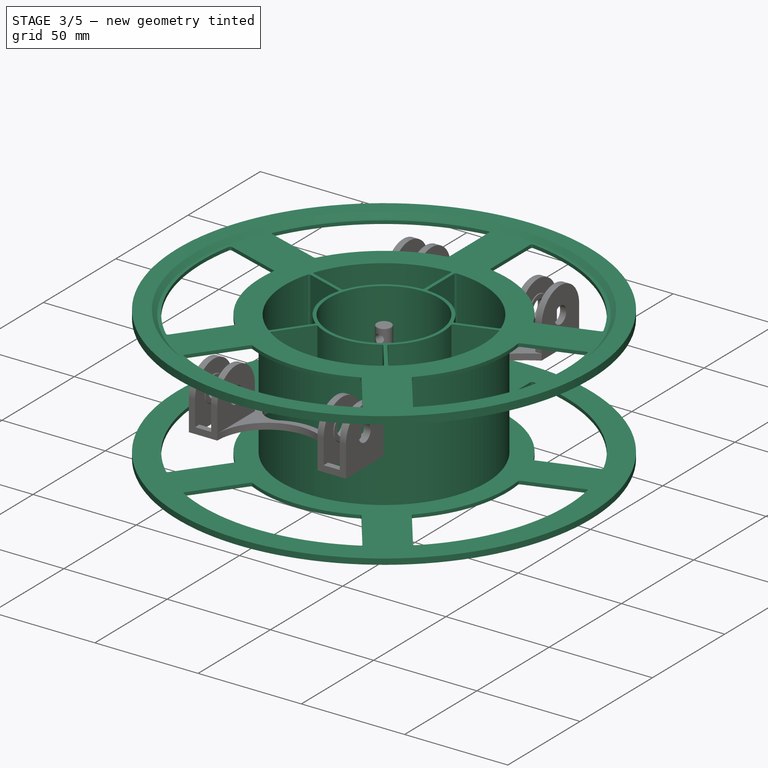
[diagram: stage 3 of 5 — iso view after this stage's code; geometry added in this stage tinted green]
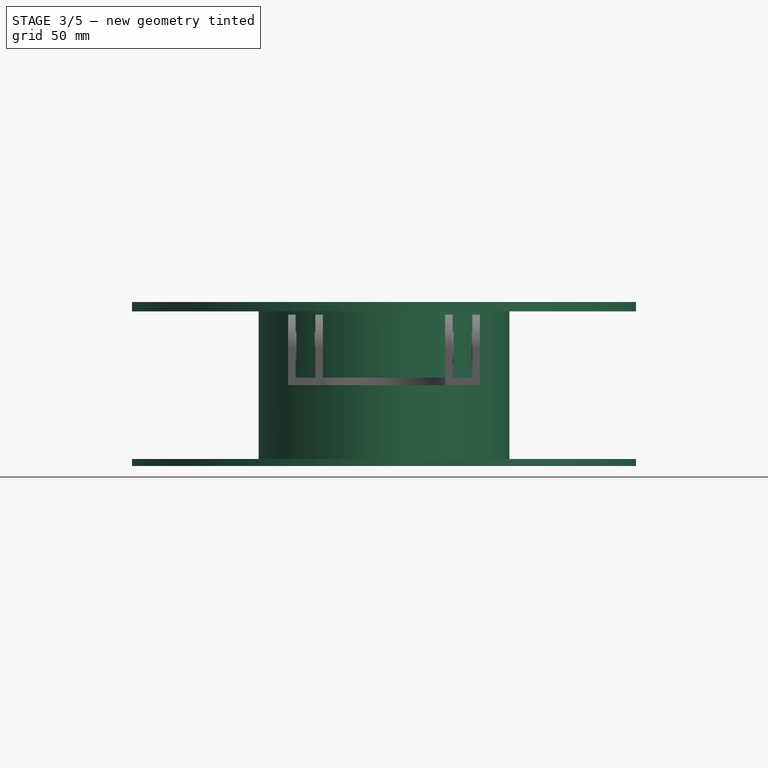
[diagram: stage 3 of 5 — front view after this stage's code; geometry added in this stage tinted green]
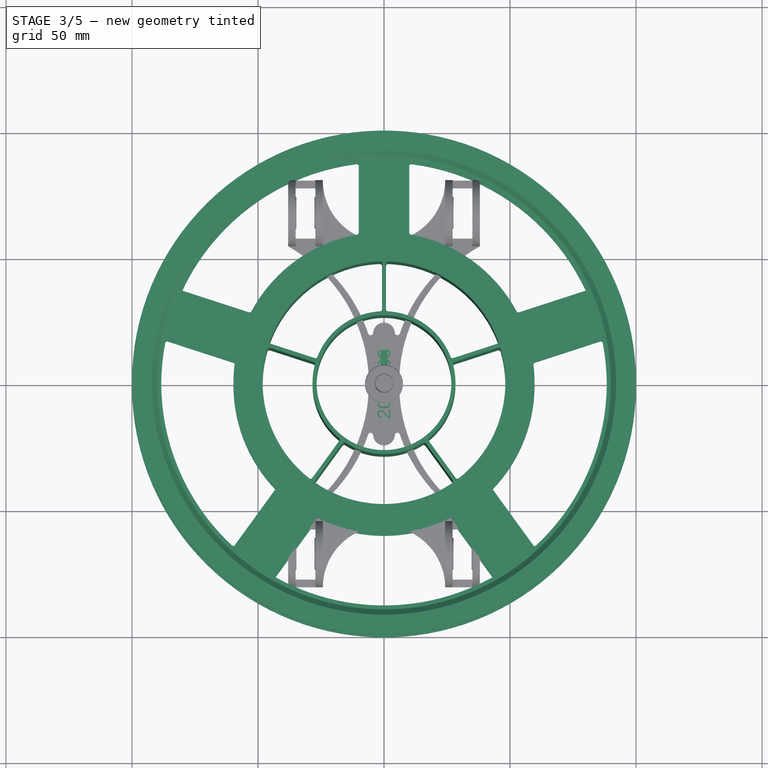
[diagram: stage 3 of 5 — top view after this stage's code; geometry added in this stage tinted green]
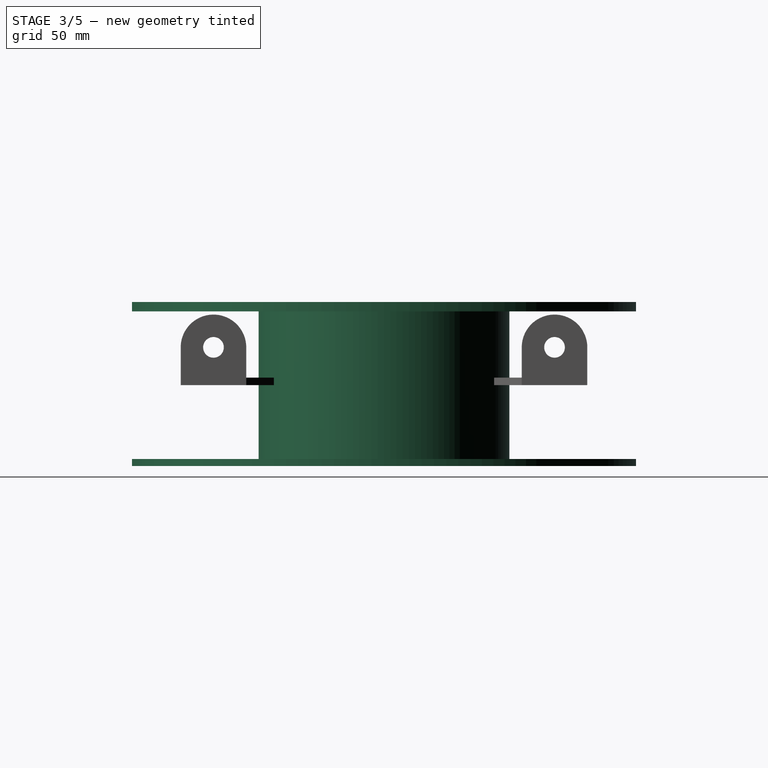
[diagram: stage 3 of 5 — right view after this stage's code; geometry added in this stage tinted green]
FEATURE [PartDesign::CoordinateSystem] Face1
  AttacherType = Attacher::AttachEngine3D
  AttachmentSupport = -> [Pad005]
  MapMode = 5
  Placement = pos=(0,0,1.5) rot=(0,0,1;0rad)
FEATURE [PartDesign::CoordinateSystem] Face2
  AttacherType = Attacher::AttachEngine3D
  AttachmentSupport = -> [Pad005]
  MapMode = 5
  Placement = pos=(0,0,0) rot=(1,0,0;3.14159rad)
FEATURE [PartDesign::Body] Body003  label="Washer"
  AllowCompound = false
  Group = -> [Sketch016,Pad005,Face1,Face2]
  Origin = -> Origin004
  Tip = -> Pad005
FEATURE [Sketcher::SketchObject] Sketch022
  ArcFitTolerance = 1e-06
  AttachmentSupport = -> [XZ_Plane006]
  FullyConstrained = true
  MakeInternals = false
  MapMode = 5
  Placement = pos=(0,0,0) rot=(1,0,0;1.5708rad)
  expr: Constraints[22] = <<Spreadsheet>>.SpoolEdgeThickness
  expr: Constraints[24] = <<Spreadsheet>>.SpoolBodyMaterialThickness
  expr: Constraints[25] = <<Spreadsheet>>.SpoolCenterHoleDiameter / 2
  expr: Constraints[26] = <<Spreadsheet>>.SpoolHubDiameter / 2
  expr: Constraints[27] = <<Spreadsheet>>.SpoolWidePartsWidth
  expr: Constraints[28] = <<Spreadsheet>>.SpoolOuterWidth / 2
  expr: Constraints[29] = <<Spreadsheet>>.SpoolOuterDiameter / 2
  sketch-geometry (12):
    g0: LineSegment StartX=26.75 StartY=30.9 StartZ=0 EndX=26.75 EndY=-30.9 EndZ=0
    g1: LineSegment StartX=26.75 StartY=-30.9 StartZ=0 EndX=90 EndY=-30.9 EndZ=0
    g2: LineSegment StartX=90 StartY=-30.9 StartZ=0 EndX=107.9 EndY=-33 EndZ=0
    g3: LineSegment StartX=107.9 StartY=-33 StartZ=0 EndX=100 EndY=-33 EndZ=0
    g4: LineSegment StartX=100 StartY=-33 StartZ=0 EndX=100 EndY=-29.3 EndZ=0
    g5: LineSegment StartX=100 StartY=-29.3 StartZ=0 EndX=49.75 EndY=-29.3 EndZ=0
    g6: LineSegment StartX=49.75 StartY=-29.3 StartZ=0 EndX=49.75 EndY=29.3 EndZ=0
    g7: LineSegment StartX=49.75 StartY=29.3 StartZ=0 EndX=100 EndY=29.3 EndZ=0
    g8: LineSegment StartX=100 StartY=29.3 StartZ=0 EndX=100 EndY=33 EndZ=0
    g9: LineSegment StartX=100 StartY=33 StartZ=0 EndX=92.1 EndY=33 EndZ=0
    g10: LineSegment StartX=92.1 StartY=33 StartZ=0 EndX=90 EndY=30.9 EndZ=0
    g11: LineSegment StartX=90 StartY=30.9 StartZ=0 EndX=26.75 EndY=30.9 EndZ=0
  constraints (34):
    c: Coincident(g0,g1)
    c: Horizontal(g1)
    c: Coincident(g1,g2)
    c: Coincident(g2,g3)
    c: Horizontal(g3)
    c: Coincident(g3,g4)
    c: Vertical(g4)
    c: Coincident(g4,g5)
    c: Horizontal(g5)
    c: Coincident(g5,g6)
    c: Coincident(g6,g7)
    c: Horizontal(g7)
    c: Coincident(g7,g8)
    c: Coincident(g8,g9)
    c: Horizontal(g9)
    c: Coincident(g9,g10)
    c: Coincident(g10,g11)
    c: Coincident(g11,g0)
    c: Horizontal(g11)
    c: Vertical(g8)
    c: Equal(g1,g11)
    c: Symmetric(g0,g0,g-1)
    c: DistanceY(g8,g8) = 3.7
    c: Angle(g10,g11) = 2.35619
    c: DistanceY(g6,g0) = 1.6
    c: DistanceX(g0) = 26.75
    c: DistanceX(g6) = 49.75
    c: DistanceX(g10,g8) = 10
    c: DistanceY(g8) = 33
    c: DistanceX(g8) = 100
    c: Equal(g9,g3)
    c: Equal(g7,g5)
    c: Equal(g8,g4)
    c: Symmetric(g5,g6,g-1)
FEATURE [PartDesign::Revolution] Revolution004
  Angle = 360
  Angle2 = 60
  Axis = (0,2e-16,1)
  Base = (0,0,0)
  Placement = pos=(0,0,0) rot=(1,0,0;1.5708rad)
  Profile = -> Sketch022
  ReferenceAxis = -> Sketch022 [V_Axis]
  Refine = true
  Reversed = true
  Suppressed = false
  Type = 0
FEATURE [Sketcher::SketchObject] Sketch023
  ArcFitTolerance = 1e-06
  AttachmentSupport = -> [Revolution004]
  ExternalGeometry = -> [Revolution004]
  FullyConstrained = true
  MakeInternals = false
  MapMode = 5
  Placement = pos=(0,6.9e-15,30.9) rot=(0,0,1;3.14159rad)
  expr: Constraints[36] = 360 / <<Spreadsheet>>.SpoolNumberOfCutouts
  expr: Constraints[37] = <<Spreadsheet>>.SpoolBodyMaterialThickness
  expr: Constraints[38] = <<Spreadsheet>>.SpoolBodyMaterialThickness
  expr: Constraints[40] = <<Spreadsheet>>.SpoolBodyMaterialThickness / 2
  expr: Constraints[41] = <<Spreadsheet>>.SpoolBodyMaterialThickness / 2
  expr: Constraints[44] = <<Spreadsheet>>.SpoolWidePartsWidth
  expr: Constraints[45] = <<Spreadsheet>>.SpoolWidePartsWidth
  expr: Constraints[46] = <<Spreadsheet>>.SpoolBodyMaterialThickness
  sketch-geometry (20):
    g0: LineSegment [constr] StartX=0 StartY=0 StartZ=0 EndX=52.9007 EndY=72.8115 EndZ=0
    g1: LineSegment [constr] StartX=0 StartY=0 StartZ=0 EndX=-52.9007 EndY=72.8115 EndZ=0
    g2: LineSegment [constr] StartX=0 StartY=0 StartZ=0 EndX=-16.4609 EndY=24.0175 EndZ=0
    g3: LineSegment [constr] StartX=0 StartY=0 StartZ=0 EndX=16.4609 EndY=24.0175 EndZ=0
    g4: ArcOfCircle CenterX=0 CenterY=0 CenterZ=0 NormalX=0 NormalY=0 NormalZ=1 AngleXU=0 Radius=48.15 StartAngle=0.976275 EndAngle=2.16532
    g5: ArcOfCircle CenterX=0 CenterY=0 CenterZ=0 NormalX=0 NormalY=0 NormalZ=1 AngleXU=0 Radius=28.35 StartAngle=0.997394 EndAngle=2.1442
    g6: LineSegment StartX=16.4609 StartY=24.0175 StartZ=0 EndX=27.1685 EndY=38.7553 EndZ=0
    g7: LineSegment StartX=-16.4609 StartY=24.0175 StartZ=0 EndX=-27.1685 EndY=38.7553 EndZ=0
    g8: ArcOfCircle CenterX=-26.5213 CenterY=39.2255 CenterZ=0 NormalX=0 NormalY=0 NormalZ=1 AngleXU=0 Radius=0.8 StartAngle=2.16532 EndAngle=3.76991
    g9: ArcOfCircle CenterX=-15.8137 CenterY=24.4878 CenterZ=0 NormalX=0 NormalY=0 NormalZ=1 AngleXU=0 Radius=0.8 StartAngle=3.76991 EndAngle=5.28579
    g10: ArcOfCircle CenterX=15.8137 CenterY=24.4878 CenterZ=0 NormalX=0 NormalY=0 NormalZ=1 AngleXU=0 Radius=0.8 StartAngle=4.13899 EndAngle=5.65487
    g11: ArcOfCircle CenterX=26.5213 CenterY=39.2255 CenterZ=0 NormalX=0 NormalY=0 NormalZ=1 AngleXU=0 Radius=0.8 StartAngle=5.65487 EndAngle=7.25946
    g12: ArcOfCircle CenterX=0 CenterY=0 CenterZ=0 NormalX=0 NormalY=0 NormalZ=1 AngleXU=0 Radius=59.75 StartAngle=1.1218 EndAngle=2.01979
    g13: ArcOfCircle CenterX=0 CenterY=0 CenterZ=0 NormalX=0 NormalY=0 NormalZ=1 AngleXU=0 Radius=88.4 StartAngle=1.06608 EndAngle=2.07551
    g14: LineSegment StartX=-26.9295 StartY=54.0783 StartZ=0 EndX=-43.007 EndY=76.2071 EndZ=0
    g15: LineSegment StartX=26.9295 StartY=54.0783 StartZ=0 EndX=43.007 EndY=76.2071 EndZ=0
    g16: ArcOfCircle CenterX=26.2823 CenterY=54.5485 CenterZ=0 NormalX=0 NormalY=0 NormalZ=1 AngleXU=0 Radius=0.8 StartAngle=4.26339 EndAngle=5.65487
    g17: ArcOfCircle CenterX=42.3598 CenterY=76.6773 CenterZ=0 NormalX=0 NormalY=0 NormalZ=1 AngleXU=0 Radius=0.8 StartAngle=5.65487 EndAngle=7.34927
    g18: ArcOfCircle CenterX=-42.3598 CenterY=76.6773 CenterZ=0 NormalX=0 NormalY=0 NormalZ=1 AngleXU=0 Radius=0.8 StartAngle=2.07551 EndAngle=3.76991
    g19: ArcOfCircle CenterX=-26.2823 CenterY=54.5485 CenterZ=0 NormalX=0 NormalY=0 NormalZ=1 AngleXU=0 Radius=0.8 StartAngle=3.76991 EndAngle=5.16138
  constraints (49):
    c: Coincident(g0,g-1)
    c: PointOnObject(g0,g-4)
    c: Coincident(g1,g0)
    c: Coincident(g2,g0)
    c: Coincident(g3,g0)
    c: Symmetric(g0,g1,g-2)
    c: Symmetric(g2,g3,g-2)
    c: Coincident(g4,g0)
    c: Coincident(g5,g0)
    c: Equal(g11,g10)
    c: Equal(g10,g9)
    c: Equal(g9,g8)
    c: Tangent(g8,g4) = -1.5708
    c: Tangent(g9,g5) = 1.5708
    c: Tangent(g10,g5) = 1.5708
    c: Tangent(g10,g6) = -1.5708
    c: Tangent(g11,g6) = -1.5708
    c: Tangent(g11,g4) = -1.5708
    c: Tangent(g9,g7) = 1.5708
    c: Tangent(g8,g7) = 1.5708
    c: Coincident(g3,g6)
    c: Coincident(g2,g7)
    c: Coincident(g12,g0)
    c: Coincident(g13,g0)
    c: Tangent(g19,g12) = 1.5708
    c: Tangent(g19,g14) = 1.5708
    c: Tangent(g18,g14) = 1.5708
    c: Tangent(g18,g13) = -1.5708
    c: Tangent(g17,g15) = -1.5708
    c: Tangent(g16,g15) = -1.5708
    c: Tangent(g16,g12) = 1.5708
    c: Tangent(g17,g13) = -1.5708
    c: Equal(g16,g17)
    c: Equal(g17,g18)
    c: Equal(g18,g19)
    c: Equal(g19,g8)
    c: Angle(g0,g1) = 1.25664
    c: Distance(g5,g-5) = 1.6
    c: Distance(g4,g-3) = 1.6
    c: Parallel(g0,g6)
    c: Distance(g6,g0) = 0.8
    c: Radius(g11) = 0.8
    c: Parallel(g15,g0)
    c: Parallel(g14,g1)
    c: Distance(g14,g1) = 10
    c: Distance(g12,g-3) = 10
    c: Distance(g13,g-4) = 1.6
    c: Horizontal(g12,g12)
    c: Diameter(g-6) = 200
FEATURE [PartDesign::Pocket] Pocket002
  BaseFeature = -> Revolution004
  Direction = (0,0,-1)
  Length = 5
  Length2 = 5
  Placement = pos=(0,0,0) rot=(1,0,0;1.5708rad)
  Profile = -> Sketch023
  ReferenceAxis = -> Sketch023 [N_Axis]
  Refine = true
  Suppressed = false
  Type = 1
FEATURE [PartDesign::PolarPattern] PolarPattern
  Angle = 360
  Axis = -> Sketch023 [N_Axis]
  BaseFeature = -> Pocket002
  Mode = 0
  Occurrences = 5
  Offset = 120
  Originals = -> [Pocket002]
  Placement = pos=(0,0,0) rot=(1,0,0;1.5708rad)
  Refine = true
  Suppressed = false
  TransformMode = 0
  expr: Occurrences = <<Spreadsheet>>.SpoolNumberOfCutouts
FEATURE [PartDesign::CoordinateSystem] Bearing005  label="Bearing4"
  AttacherType = Attacher::AttachEngine3D
  AttachmentSupport = -> [Pad012]
  MapMode = 45
  Placement = pos=(-31.15,-67.6535,15) rot=(0.57735,0.57735,0.57735;4.18879rad)
FEATURE [PartDesign::CoordinateSystem] Bearing007  label="Bearing1"
  AttacherType = Attacher::AttachEngine3D
  AttachmentSupport = -> [Pad012]
  MapMode = 45
  Placement = pos=(-31.15,67.6535,15) rot=(-0.57735,-0.57735,-0.57735;2.0944rad)
FEATURE [PartDesign::CoordinateSystem] Washer1a001  label="Washer4b"
  AttacherType = Attacher::AttachEngine3D
  AttachmentSupport = -> [Revolution007]
  MapMode = 11
  Placement = pos=(-38.05,-67.6535,15) rot=(0,-1,0;1.5708rad)
FEATURE [PartDesign::CoordinateSystem] Washer1b001  label="Washer1b"
  AttacherType = Attacher::AttachEngine3D
  AttachmentSupport = -> [Revolution007]
  MapMode = 11
  Placement = pos=(-24.25,67.6535,15) rot=(0,-1,0;1.5708rad)
FEATURE [PartDesign::CoordinateSystem] Washer2a001  label="Washer2a"
  AttacherType = Attacher::AttachEngine3D
  AttachmentSupport = -> [Revolution007]
  MapMode = 11
  Placement = pos=(24.25,67.6535,15) rot=(0,-1,0;1.5708rad)
FEATURE [PartDesign::CoordinateSystem] Washer2b001  label="Washer2b"
  AttacherType = Attacher::AttachEngine3D
  AttachmentSupport = -> [Revolution007]
  MapMode = 11
  Placement = pos=(38.05,67.6535,15) rot=(0,-1,0;1.5708rad)
FEATURE [PartDesign::CoordinateSystem] Washer3a001  label="Washer1a"
  AttacherType = Attacher::AttachEngine3D
  AttachmentSupport = -> [Revolution007]
  MapMode = 11
  Placement = pos=(-38.05,67.6535,15) rot=(0,-1,0;1.5708rad)
FEATURE [PartDesign::CoordinateSystem] Washer3b001  label="Washer4a"
  AttacherType = Attacher::AttachEngine3D
  AttachmentSupport = -> [Revolution007]
  MapMode = 11
  Placement = pos=(-24.25,-67.6535,15) rot=(0,-1,0;1.5708rad)
FEATURE [PartDesign::CoordinateSystem] Washer4a001  label="Washer3b"
  AttacherType = Attacher::AttachEngine3D
  AttachmentSupport = -> [Revolution007]
  MapMode = 11
  Placement = pos=(24.25,-67.6535,15) rot=(0,-1,0;1.5708rad)
FEATURE [PartDesign::CoordinateSystem] Washer4b001  label="Washer3a"
  AttacherType = Attacher::AttachEngine3D
  AttachmentSupport = -> [Revolution007]
  MapMode = 11
  Placement = pos=(38.05,-67.6535,15) rot=(0,-1,0;1.5708rad)
FEATURE [Part::Part2DObjectPython] ShapeString001  # Draft 2D object (typed FeaturePython)
  FontFile = <userpath>/.fonts/ttf/arial.ttf
  Fuse = false
  Justification = 4
  JustificationReference = 0
  KeepLeftMargin = false
  MakeFace = true
  ObliqueAngle = 0
  Placement = pos=(0,0,2) rot=(0,0,1;1.5708rad)
  ScaleToSize = true
  Size = 5
  String = 200 x 66
  Tracking = 0
  expr: Size = <<Spreadsheet>>.BaseSIgnTextSize
  expr: String = <<%.0f>> % <<Spreadsheet>>.SpoolOuterDiameter + << x %0.f>> % <<Spreadsheet>>.SpoolOuterWidth
FEATURE [PartDesign::Pocket] Pocket004
  BaseFeature = -> Pad012
  Direction = (0,0,-1)
  Length = 1
  Length2 = 5
  Profile = -> ShapeString001
  ReferenceAxis = -> ShapeString001 [N_Axis]
  Refine = true
  Suppressed = false
  Type = 0
  expr: Length = <<Spreadsheet>>.BaseSignThickness / 2
FEATURE [PartDesign::CoordinateSystem] MountFace
  AttacherType = Attacher::AttachEngine3D
  AttachmentSupport = -> [Pocket]
  MapMode = 11
  Placement = pos=(4e-16,1.2e-15,5.5) rot=(0.707107,-0.707107,0;3.14159rad)
FEATURE [PartDesign::CoordinateSystem] AxlePin
  AttacherType = Attacher::AttachEngine3D
  AttachmentOffset = pos=(0,0,-1) rot=(0,0,1;0rad)
  AttachmentSupport = -> [Pocket]
  MapMode = 45
  Placement = pos=(2.21968e-10,-4.27533,21.5856) rot=(0.57735,0.57735,0.57735;4.18879rad)
FEATURE [PartDesign::Body] Body008  label="Bearing Axle"
  AllowCompound = false
  Group = -> [Sketch038,Revolution008,Sketch039,Pocket,MountFace,AxlePin]
  Origin = -> Origin009
  Tip = -> Pocket
FEATURE [Sketcher::SketchObject] Sketch040
  ArcFitTolerance = 1e-06
  AttachmentSupport = -> [XY_Plane010]
  FullyConstrained = true
  MakeInternals = false
  MapMode = 5
  expr: Constraints[42] = <<Spreadsheet>>.AxlePinWidth
  expr: Constraints[43] = <<Spreadsheet>>.AxlePinWidth
  expr: Constraints[44] = <<Spreadsheet>>.AxlePinWidth * 4
  expr: Constraints[45] = <<Spreadsheet>>.AxlePinLength
  expr: Constraints[46] = <<Spreadsheet>>.AxlePinRadiuses
  sketch-geometry (20):
    g0: LineSegment StartX=-4.83333 StartY=0 StartZ=0 EndX=4.83333 EndY=0 EndZ=0
    g1: LineSegment StartX=5.33333 StartY=0.5 StartZ=0 EndX=5.33333 EndY=2.16667 EndZ=0
    g2: LineSegment StartX=4.83333 StartY=2.66667 StartZ=0 EndX=1.33333 EndY=2.66667 EndZ=0
    g3: LineSegment StartX=1.33333 StartY=2.66667 StartZ=0 EndX=1.33333 EndY=12.8333 EndZ=0
    g4: LineSegment StartX=0.833333 StartY=13.3333 StartZ=0 EndX=-0.833333 EndY=13.3333 EndZ=0
    g5: LineSegment StartX=-1.33333 StartY=12.8333 StartZ=0 EndX=-1.33333 EndY=2.66667 EndZ=0
    g6: LineSegment StartX=-1.33333 StartY=2.66667 StartZ=0 EndX=-4.83333 EndY=2.66667 EndZ=0
    g7: LineSegment StartX=-5.33333 StartY=2.16667 StartZ=0 EndX=-5.33333 EndY=0.5 EndZ=0
    g8: ArcOfCircle CenterX=4.83333 CenterY=0.5 CenterZ=0 NormalX=0 NormalY=0 NormalZ=1 AngleXU=0 Radius=0.5 StartAngle=4.71239 EndAngle=6.28319
    g9: GeomPoint [constr] X=5.33333 Y=0 Z=0
    g10: ArcOfCircle CenterX=4.83333 CenterY=2.16667 CenterZ=0 NormalX=0 NormalY=0 NormalZ=1 AngleXU=0 Radius=0.5 StartAngle=1e-16 EndAngle=1.5708
    g11: GeomPoint [constr] X=5.33333 Y=2.66667 Z=0
    g12: ArcOfCircle CenterX=0.833333 CenterY=12.8333 CenterZ=0 NormalX=0 NormalY=0 NormalZ=1 AngleXU=0 Radius=0.5 StartAngle=1.5e-15 EndAngle=1.5708
    g13: GeomPoint [constr] X=1.33333 Y=13.3333 Z=0
    g14: ArcOfCircle CenterX=-0.833333 CenterY=12.8333 CenterZ=0 NormalX=0 NormalY=0 NormalZ=1 AngleXU=0 Radius=0.5 StartAngle=1.5708 EndAngle=3.14159
    g15: GeomPoint [constr] X=-1.33333 Y=13.3333 Z=0
    g16: ArcOfCircle CenterX=-4.83333 CenterY=2.16667 CenterZ=0 NormalX=0 NormalY=0 NormalZ=1 AngleXU=0 Radius=0.5 StartAngle=1.5708 EndAngle=3.14159
    g17: GeomPoint [constr] X=-5.33333 Y=2.66667 Z=0
    g18: ArcOfCircle CenterX=-4.83333 CenterY=0.5 CenterZ=0 NormalX=0 NormalY=0 NormalZ=1 AngleXU=0 Radius=0.5 StartAngle=3.14159 EndAngle=4.71239
    g19: GeomPoint [constr] X=-5.33333 Y=0 Z=0
  constraints (47):
    c: PointOnObject(g19,g-1)
    c: Vertical(g1)
    c: Horizontal(g2)
    c: Coincident(g2,g3)
    c: Vertical(g3)
    c: Horizontal(g4)
    c: Vertical(g5)
    c: Coincident(g5,g6)
    c: Horizontal(g6)
    c: Vertical(g7)
    c: Symmetric(g9,g19,g-2)
    c: PointOnObject(g9,g0)
    c: PointOnObject(g9,g1)
    c: Tangent(g0,g8) = -1.5708
    c: Tangent(g1,g8) = -1.5708
    c: PointOnObject(g11,g1)
    c: PointOnObject(g11,g2)
    c: Tangent(g1,g10) = -1.5708
    c: Tangent(g2,g10) = -1.5708
    c: PointOnObject(g13,g3)
    c: PointOnObject(g13,g4)
    c: Tangent(g3,g12) = -1.5708
    c: Tangent(g4,g12) = -1.5708
    c: PointOnObject(g15,g4)
    c: PointOnObject(g15,g5)
    c: Tangent(g4,g14) = -1.5708
    c: Tangent(g5,g14) = -1.5708
    c: PointOnObject(g17,g6)
    c: PointOnObject(g17,g7)
    c: Tangent(g6,g16) = -1.5708
    c: Tangent(g7,g16) = -1.5708
    c: PointOnObject(g19,g0)
    c: PointOnObject(g19,g7)
    c: Tangent(g0,g18) = -1.5708
    c: Tangent(g7,g18) = -1.5708
    c: Equal(g14,g12)
    c: Equal(g12,g16)
    c: Equal(g16,g18)
    c: Equal(g18,g8)
    c: Equal(g8,g10)
    c: Equal(g1,g7)
    c: Equal(g6,g2)
    c: DistanceY(g11) = 2.66667
    c: DistanceX(g5,g3) = 2.66667
    c: DistanceX(g19,g9) = 10.6667
    c: DistanceY(g11,g13) = 10.6667
    c: Radius(g10) = 0.5
FEATURE [PartDesign::Pad] Pad013
  Direction = (0,0,1)
  Length = 2.66667
  Length2 = 10
  Profile = -> Sketch040
  ReferenceAxis = -> Sketch040 [N_Axis]
  Refine = true
  Suppressed = false
  Type = 0
  expr: Length = <<Spreadsheet>>.AxlePinWidth
FEATURE [PartDesign::CoordinateSystem] Mount
  AttacherType = Attacher::AttachEngine3D
  AttachmentSupport = -> [Pad013]
  MapMode = 45
  Placement = pos=(2e-16,2.66667,1.33333) rot=(0.57735,0.57735,0.57735;4.18879rad)
FEATURE [PartDesign::Body] Body009  label="Axle Pin"
  AllowCompound = false
  Group = -> [Sketch040,Pad013,Mount]
  Origin = -> Origin010
  Tip = -> Pad013
FEATURE [App::DocumentObjectGroup] Parts
  Group = -> [Body,Body003,Body004,Body005,Body006,Body007,Body008,Body009]
FEATURE [App::Link] Bearing_Axle  label="Bearing Axle001"
  AttachedBy = #MountFace
  AttachedTo = Base#Washer3a001
  LinkPlacement = pos=(-43.55,67.6535,15) rot=(-0.57735,0.57735,-0.57735;2.0944rad)
  LinkedObject = -> Body008
  Placement = pos=(-43.55,67.6535,15) rot=(-0.57735,0.57735,-0.57735;2.0944rad)
  SolverId = Asm4EE
  expr: Placement = Base.Placement * Washer3a001.Placement * AttachmentOffset * MountFace.Placement ^ -1
FEATURE [App::Link] Bearing_Axle001  label="Bearing Axle002"
  AttachedBy = #MountFace
  AttachedTo = Base#Washer2b001
  AttachmentOffset = pos=(0,0,0) rot=(1,0,0;3.14159rad)
  LinkPlacement = pos=(43.55,67.6535,15) rot=(-0.57735,-0.57735,0.57735;2.0944rad)
  LinkedObject = -> Body008
  Placement = pos=(43.55,67.6535,15) rot=(-0.57735,-0.57735,0.57735;2.0944rad)
  SolverId = Asm4EE
  expr: Placement = Base.Placement * Washer2b001.Placement * AttachmentOffset * MountFace.Placement ^ -1
FEATURE [App::Link] Bearing_Axle002  label="Bearing Axle003"
  AttachedBy = #MountFace
  AttachedTo = Base#Washer4b001
  AttachmentOffset = pos=(0,0,0) rot=(1,0,0;3.14159rad)
  LinkPlacement = pos=(43.55,-67.6535,15) rot=(-0.57735,-0.57735,0.57735;2.0944rad)
  LinkedObject = -> Body008
  Placement = pos=(43.55,-67.6535,15) rot=(-0.57735,-0.57735,0.57735;2.0944rad)
  SolverId = Asm4EE
  expr: Placement = Base.Placement * Washer4b001.Placement * AttachmentOffset * MountFace.Placement ^ -1
FEATURE [App::Link] Bearing_Axle003  label="Bearing Axle004"
  AttachedBy = #MountFace
  AttachedTo = Base#Washer1a001
  LinkPlacement = pos=(-43.55,-67.6535,15) rot=(-0.57735,0.57735,-0.57735;2.0944rad)
  LinkedObject = -> Body008
  Placement = pos=(-43.55,-67.6535,15) rot=(-0.57735,0.57735,-0.57735;2.0944rad)
  SolverId = Asm4EE
  expr: Placement = Base.Placement * Washer1a001.Placement * AttachmentOffset * MountFace.Placement ^ -1
FEATURE [App::Link] Axle_Pin  label="Axle Pin001"
  AttachedBy = #Mount
  AttachedTo = Bearing_Axle#AxlePin
  LinkPlacement = pos=(-23.2977,67.6535,21.942) rot=(0.57735,-0.57735,0.57735;4.18879rad)
  LinkedObject = -> Body009
  Placement = pos=(-23.2977,67.6535,21.942) rot=(0.57735,-0.57735,0.57735;4.18879rad)
  SolverId = Asm4EE
  expr: Placement = Bearing_Axle.Placement * AxlePin.Placement * AttachmentOffset * Mount.Placement ^ -1
FEATURE [App::Link] Axle_Pin001  label="Axle Pin002"
  AttachedBy = #Mount
  AttachedTo = Bearing_Axle001#AxlePin
  LinkPlacement = pos=(23.2977,67.6535,21.942) rot=(0.57735,0.57735,-0.57735;4.18879rad)
  LinkedObject = -> Body009
  Placement = pos=(23.2977,67.6535,21.942) rot=(0.57735,0.57735,-0.57735;4.18879rad)
  SolverId = Asm4EE
  expr: Placement = Bearing_Axle001.Placement * AxlePin.Placement * AttachmentOffset * Mount.Placement ^ -1
FEATURE [App::Link] Axle_Pin002  label="Axle Pin003"
  AttachedBy = #Mount
  AttachedTo = Bearing_Axle002#AxlePin
  LinkPlacement = pos=(23.2977,-67.6535,21.942) rot=(0.57735,0.57735,-0.57735;4.18879rad)
  LinkedObject = -> Body009
  Placement = pos=(23.2977,-67.6535,21.942) rot=(0.57735,0.57735,-0.57735;4.18879rad)
  SolverId = Asm4EE
  expr: Placement = Bearing_Axle002.Placement * AxlePin.Placement * AttachmentOffset * Mount.Placement ^ -1
FEATURE [App::Link] Axle_Pin003  label="Axle Pin004"
  AttachedBy = #Mount
  AttachedTo = Bearing_Axle003#AxlePin
  LinkPlacement = pos=(-23.2977,-67.6535,21.942) rot=(0.57735,-0.57735,0.57735;4.18879rad)
  LinkedObject = -> Body009
  Placement = pos=(-23.2977,-67.6535,21.942) rot=(0.57735,-0.57735,0.57735;4.18879rad)
  SolverId = Asm4EE
  expr: Placement = Bearing_Axle003.Placement * AxlePin.Placement * AttachmentOffset * Mount.Placement ^ -1
FEATURE [App::Part] Assembly  label="Spool Roller Assembly with Printed Axles"
  AssemblyType = Part::Link
  Group = -> [LCS_Origin,Constraints,Variables,Configurations,Base,Ball_Bearing,Ball_Bearing001,Ball_Bearing002,Ball_Bearing003,Spool,Bearing_Axle,Bearing_Axle001,Bearing_Axle002,Bearing_Axle003,Axle_Pin,Axle_Pin001,Axle_Pin002,Axle_Pin003]
  Origin = -> Origin003
  Type = Assembly
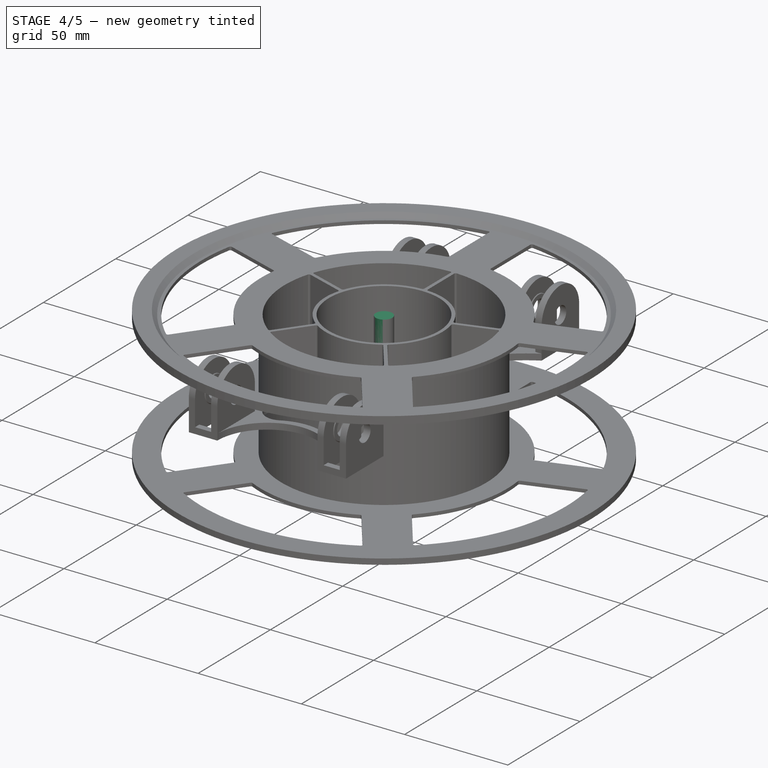
[diagram: stage 4 of 5 — iso view after this stage's code; geometry added in this stage tinted green]
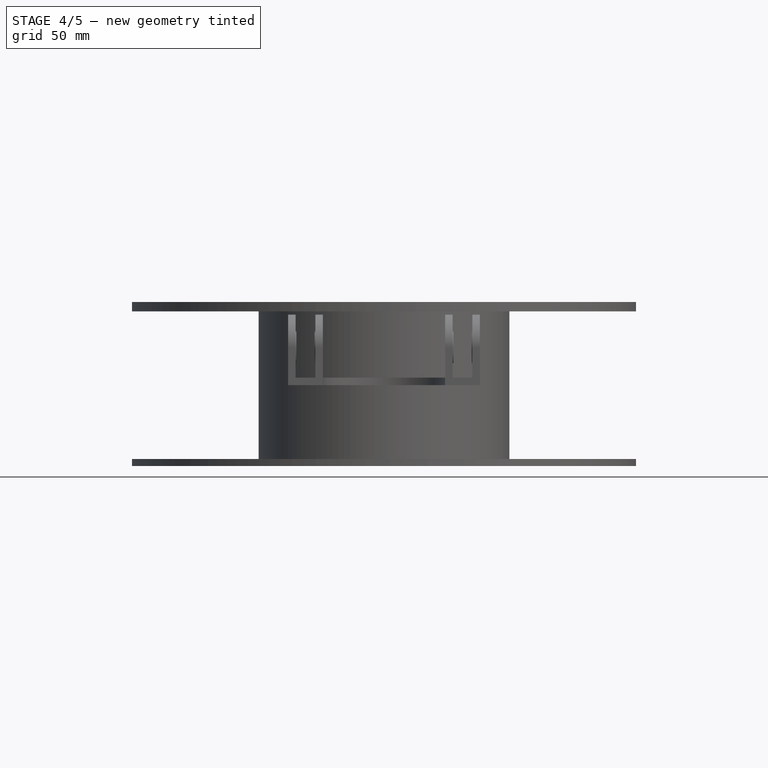
[diagram: stage 4 of 5 — front view after this stage's code; geometry added in this stage tinted green]
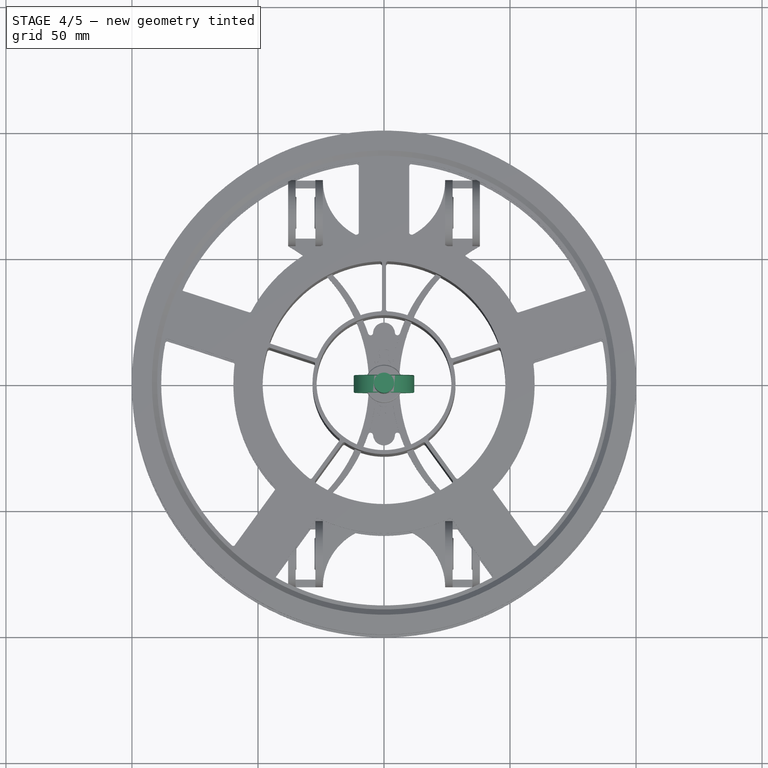
[diagram: stage 4 of 5 — top view after this stage's code; geometry added in this stage tinted green]
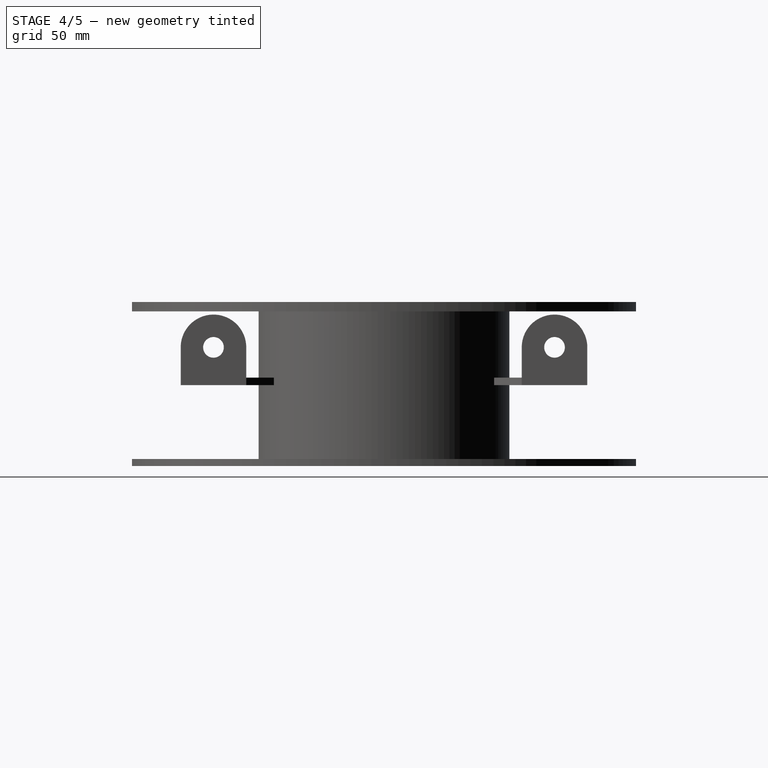
[diagram: stage 4 of 5 — right view after this stage's code; geometry added in this stage tinted green]
FEATURE [Sketcher::SketchObject] Sketch
  ArcFitTolerance = 1e-06
  AttachmentSupport = -> [XY_Plane]
  FullyConstrained = true
  MakeInternals = false
  MapMode = 5
  expr: Constraints[31] = <<Spreadsheet>>.BallBearingThickness
  expr: Constraints[35] = <<Spreadsheet>>.BallBearingThickness - 0.2 mm
  expr: Constraints[36] = <<Spreadsheet>>.BallBearingInnerDiameter / 2
  expr: Constraints[37] = ((<<Spreadsheet>>.BallBearingOuterDiameter - <<Spreadsheet>>.BallBearingInnerDiameter) / 2 - 1 mm) / 3
  expr: Constraints[38] = ((<<Spreadsheet>>.BallBearingOuterDiameter - <<Spreadsheet>>.BallBearingInnerDiameter) / 2 - 1 mm) / 3
  expr: Constraints[39] = ((<<Spreadsheet>>.BallBearingOuterDiameter - <<Spreadsheet>>.BallBearingInnerDiameter) / 2 - 1 mm) / 3
  sketch-geometry (28):
    g0: LineSegment StartX=4 StartY=-3.2 StartZ=0 EndX=4 EndY=3.2 EndZ=0
    g1: LineSegment StartX=4.3 StartY=3.5 StartZ=0 EndX=6 EndY=3.5 EndZ=0
    g2: LineSegment StartX=6 StartY=3.5 StartZ=0 EndX=6.5 EndY=3.4 EndZ=0
    g3: LineSegment StartX=6.5 StartY=3.4 StartZ=0 EndX=7 EndY=3.5 EndZ=0
    g4: LineSegment StartX=7 StartY=3.5 StartZ=0 EndX=9 EndY=3.5 EndZ=0
    g5: LineSegment StartX=9 StartY=3.5 StartZ=0 EndX=9.5 EndY=3.4 EndZ=0
    g6: LineSegment StartX=9.5 StartY=3.4 StartZ=0 EndX=10 EndY=3.5 EndZ=0
    g7: LineSegment StartX=10 StartY=3.5 StartZ=0 EndX=11.7 EndY=3.5 EndZ=0
    g8: LineSegment StartX=12 StartY=3.2 StartZ=0 EndX=12 EndY=-3.2 EndZ=0
    g9: LineSegment StartX=11.7 StartY=-3.5 StartZ=0 EndX=10 EndY=-3.5 EndZ=0
    g10: LineSegment StartX=10 StartY=-3.5 StartZ=0 EndX=9.5 EndY=-3.4 EndZ=0
    g11: LineSegment StartX=9.5 StartY=-3.4 StartZ=0 EndX=9 EndY=-3.5 EndZ=0
    g12: LineSegment StartX=9 StartY=-3.5 StartZ=0 EndX=7 EndY=-3.5 EndZ=0
    g13: LineSegment StartX=7 StartY=-3.5 StartZ=0 EndX=6.5 EndY=-3.4 EndZ=0
    g14: LineSegment StartX=6.5 StartY=-3.4 StartZ=0 EndX=6 EndY=-3.5 EndZ=0
    g15: LineSegment StartX=6 StartY=-3.5 StartZ=0 EndX=4.3 EndY=-3.5 EndZ=0
    g16: ArcOfCircle [constr] CenterX=11.7 CenterY=3.2 CenterZ=0 NormalX=0 NormalY=0 NormalZ=1 AngleXU=0 Radius=0.3 StartAngle=0 EndAngle=1.5708
    g17: GeomPoint [constr] X=12 Y=3.5 Z=0
    g18: LineSegment StartX=12 StartY=3.2 StartZ=0 EndX=11.7 EndY=3.5 EndZ=0
    g19: ArcOfCircle [constr] CenterX=11.7 CenterY=-3.2 CenterZ=0 NormalX=0 NormalY=0 NormalZ=1 AngleXU=0 Radius=0.3 StartAngle=4.71239 EndAngle=6.28319
    g20: GeomPoint [constr] X=12 Y=-3.5 Z=0
    g21: LineSegment StartX=11.7 StartY=-3.5 StartZ=0 EndX=12 EndY=-3.2 EndZ=0
    g22: ArcOfCircle [constr] CenterX=4.3 CenterY=-3.2 CenterZ=0 NormalX=0 NormalY=0 NormalZ=1 AngleXU=0 Radius=0.3 StartAngle=3.14159 EndAngle=4.71239
    g23: GeomPoint [constr] X=4 Y=-3.5 Z=0
    g24: LineSegment StartX=4 StartY=-3.2 StartZ=0 EndX=4.3 EndY=-3.5 EndZ=0
    g25: ArcOfCircle [constr] CenterX=4.3 CenterY=3.2 CenterZ=0 NormalX=0 NormalY=0 NormalZ=1 AngleXU=0 Radius=0.3 StartAngle=1.5708 EndAngle=3.14159
    g26: GeomPoint [constr] X=4 Y=3.5 Z=0
    g27: LineSegment StartX=4.3 StartY=3.5 StartZ=0 EndX=4 EndY=3.2 EndZ=0
  constraints (70):
    c: Horizontal(g1)
    c: Coincident(g1,g2)
    c: Coincident(g2,g3)
    c: Coincident(g3,g4)
    c: Horizontal(g4)
    c: Coincident(g4,g5)
    c: Coincident(g5,g6)
    c: Coincident(g6,g7)
    c: Vertical(g8)
    c: Horizontal(g9)
    c: Coincident(g9,g10)
    c: Coincident(g10,g11)
    c: Coincident(g11,g12)
    c: Coincident(g12,g13)
    c: Coincident(g13,g14)
    c: Coincident(g14,g15)
    c: Symmetric(g26,g23,g-1)
    c: Horizontal(g15)
    c: Horizontal(g12)
    c: Horizontal(g7)
    c: Horizontal(g14,g12)
    c: Horizontal(g12,g9)
    c: Horizontal(g1,g3)
    c: Horizontal(g3,g6)
    c: Equal(g2,g3)
    c: Equal(g3,g5)
    c: Equal(g5,g6)
    c: Equal(g6,g10)
    c: Equal(g10,g11)
    c: Equal(g11,g13)
    c: Equal(g13,g14)
    c: DistanceY(g23,g26) = 7
    c: Symmetric(g2,g13,g-1)
    c: Horizontal(g10,g13)
    c: Horizontal(g2,g5)
    c: DistanceY(g13,g2) = 6.8
    c: DistanceX(g26) = 4
    c: DistanceX(g26,g1) = 2
    c: DistanceX(g4,g4) = 2
    c: DistanceX(g7,g17) = 2
    c: Equal(g12,g4)
    c: DistanceX(g1,g3) = 1
    c: PointOnObject(g17,g7)
    c: PointOnObject(g17,g8)
    c: Tangent(g7,g16) = 1.5708
    c: Tangent(g8,g16) = 1.5708
    c: Coincident(g18,g7)
    c: Coincident(g18,g8)
    c: PointOnObject(g20,g8)
    c: PointOnObject(g20,g9)
    c: Tangent(g8,g19) = 1.5708
    c: Tangent(g9,g19) = 1.5708
    c: Coincident(g21,g8)
    c: Coincident(g21,g9)
    c: PointOnObject(g23,g0)
    c: PointOnObject(g23,g15)
    c: Tangent(g0,g22) = 1.5708
    c: Tangent(g15,g22) = 1.5708
    c: Coincident(g24,g0)
    c: Coincident(g24,g15)
    c: PointOnObject(g26,g0)
    c: PointOnObject(g26,g1)
    c: Tangent(g0,g25) = 1.5708
    c: Tangent(g1,g25) = 1.5708
    c: Coincident(g27,g0)
    c: Coincident(g27,g1)
    c: Radius(g16) = 0.3
    c: Equal(g16,g19)
    c: Equal(g19,g22)
    c: Equal(g22,g25)
FEATURE [Spreadsheet::Sheet] Spreadsheet
  cells = A1='Bearing Mounts; D1='Ball Bearing; G1='Washer; A2='Extra Diameter; B2(BearingMountsExtraDiameter)==4 mm; D2='Inner Diameter; E2(BallBearingInnerDiameter)==8 mm; G2='Outer Diameter; H2(WasherOuterDiameter)==17 mm; A3='Extra Height; B3(BearingMountsExtraHeight)==2 mm; D3='Outer Diameter; E3(BallBearingOuterDiameter)==22 mm; G3='Inner Diameter; H3(WasherInnerDiameter)==8.4 mm; A4='Thickness; B4(BearingMountsThickness)==3 mm; D4='Thickness; E4(BallBearingThickness)==7 mm; G4='Thickness; H4(WasherThickness)==1.5 mm; A5='Flange Thickness; B5(BearingMountsFlangeThickness)==0.3 mm; D5='Z Center; E5(BallBearingZCenter)==(BallBearingOuterDiameter + BearingMountsExtraDiameter) / 2 + BearingMountsExtraHeight; F5='calculated; A6='Flange Diameter; B6(BearingMountsFlangeDiameter)==2 mm; A7='Hole Dia; B7(BearingMountsHoleDiameter)==BallBearingInnerDiameter + BearingMountsHoleTolerance; C7='calculated; D7='Nut; G7='Bolt; A8='Hole Tolerance; B8(BearingMountsHoleTolerance)==0.2 mm; D8='Height; E8(NutHeight)==5.5 mm; G8='Head Height; H8(BoltHeadHeight)==5.5 mm; A9='Width Tolerance; B9(BearingMountsWidthTolerance)==0.1 mm; D9='Total Height; E9(NutTotalHeight)==7.9 mm; G9='Length; H9(BoltLength)==ceil((WasherThickness * 2 + BearingMountsThickness * 2 + BearingMountsWidthTolerance * 2 + BallBearingThickness + NutTotalHeight + BoltExtraLength) / 5.1) * 5; I9='calculated; D10='Head Size; E10(NutHeadSize)=13; G10='Head Size; H10(BoltHeadSize)==13 mm; A11='Base; D11='Roundings; E11(NutRoundings)==0.5 mm; G11='Roundings; H11(BoltRoundings)==0.5 mm; A12='Bottom Thickness; B12(BaseBottomThickness)==3 mm; G12='Extra Length; H12(BoltExtraLength)==1 mm; A13='Arm Width; B13(BaseArmWidth)==3 mm; D13='Spool; A14='Foot Width; B14(BaseFootWidth)==BearingMountsThickness * 2 + BallBearingThickness + BearingMountsFlangeThickness * 2 + BearingMountsWidthTolerance * 2; C14='calculated; D14='Outer Diameter; E14(SpoolOuterDiameter)==200 mm; G14='Bearing Axle; A15='Foot Length; B15(BaseFootLength)==BallBearingOuterDiameter + BearingMountsExtraDiameter; C15='calculated; D15='Outer Width; E15(SpoolOuterWidth)==66 mm; G15='Corner Radius; H15(BearingAxleCornerRadius)==0.5 mm; A16='Bearings X Distance; B16(BaseBearingsXDistance)==SpoolOuterWidth - SpoolEdgeThickness; C16='calculated; D16='Edge Thickness; E16(SpoolEdgeThickness)==3.7 mm; G16='Head Diameter; H16(BearingAxleHeadDiameter)==2 * BoltHeadSize / sqrt(3); I16='calculated; A17='Sign Width; B17(BaseSignWidth)==40 mm; D17='Body Material Thickness; E17(SpoolBodyMaterialThickness)==1.6 mm; G17='Diameter Tolerance; H17(BearingAxleDiameterTolerance)==0.4 mm; A18='Sign Thickness; B18(BaseSignThickness)==2 mm; D18='Center Hole Diameter; E18(SpoolCenterHoleDiameter)==53.5 mm; G18='Pin Hole Position; H18(BearingAxlePinHolePosition)==BaseFootWidth + BearingAxlePinHoleDiameter / 2 + BearingAxlePinHoleTolerance; I18='calculated; A19='Sign Text Size; B19(BaseSIgnTextSize)==5 mm; D19='Hub Diameter; E19(SpoolHubDiameter)==99.5 mm; G19='Pin Hole Diameter; H19(BearingAxlePinHoleDiameter)==AxlePinWidth * sqrt(2) + BearingAxlePinHoleTolerance * 2; I19='calculated; D20='Number of Cutouts; E20(SpoolNumberOfCutouts)=5; G20='Pin Hole Tolerance; H20(BearingAxlePinHoleTolerance)==0.2 mm; A21='Axle Pin; D21='Wide Parts Width; E21(SpoolWidePartsWidth)==10 mm; G21='Length; H21(BearingAxleLength)==BearingAxlePinHolePosition + BearingAxlePinHoleDiameter / 2 + BearingAxlePinHoleTolerance + BallBearingInnerDiameter / 3; I21='calculated; A22='Width; B22(AxlePinWidth)==BallBearingInnerDiameter / 3; C22='calculated; A23='Length; B23(AxlePinLength)==BallBearingInnerDiameter + AxlePinWidth; C23='calculated; A24='Radiuses; B24(AxlePinRadiuses)==0.5 mm
FEATURE [PartDesign::Revolution] Revolution
  Angle = 360
  Angle2 = 60
  Axis = (0,1,0)
  Base = (0,0,0)
  Profile = -> Sketch
  ReferenceAxis = -> Sketch [V_Axis]
  Reversed = true
  Suppressed = false
  Type = 0
FEATURE [Sketcher::SketchObject] Sketch027
  ArcFitTolerance = 1e-06
  AttachmentSupport = -> [XY_Plane007]
  FullyConstrained = true
  MakeInternals = false
  MapMode = 5
FEATURE [Sketcher::SketchObject] Sketch028
  ArcFitTolerance = 1e-06
  AttachmentSupport = -> [XY_Plane007]
  FullyConstrained = true
  MakeInternals = false
  MapMode = 5
  expr: Constraints[19] = <<Spreadsheet>>.BoltHeadSize
  sketch-geometry (7):
    g0: LineSegment StartX=7.50555 StartY=0 StartZ=0 EndX=3.75278 EndY=6.5 EndZ=0
    g1: LineSegment StartX=3.75278 StartY=6.5 StartZ=0 EndX=-3.75278 EndY=6.5 EndZ=0
    g2: LineSegment StartX=-3.75278 StartY=6.5 StartZ=0 EndX=-7.50555 EndY=1.0747e-12 EndZ=0
    g3: LineSegment StartX=-7.50555 StartY=1.0747e-12 StartZ=0 EndX=-3.75278 EndY=-6.5 EndZ=0
    g4: LineSegment StartX=-3.75278 StartY=-6.5 StartZ=0 EndX=3.75278 EndY=-6.5 EndZ=0
    g5: LineSegment StartX=3.75278 StartY=-6.5 StartZ=0 EndX=7.50555 EndY=0 EndZ=0
    g6: Circle [constr] CenterX=0 CenterY=0 CenterZ=0 NormalX=0 NormalY=0 NormalZ=1 AngleXU=0 Radius=7.50555
  constraints (16):
    c: Coincident(g0,g1)
    c: Coincident(g1,g2)
    c: Coincident(g2,g3)
    c: Coincident(g3,g4)
    c: Coincident(g4,g5)
    c: Coincident(g5,g0)
    c: Equal(g0, g1-g5) x5
    c: PointOnObject(g0,g6)
    c: PointOnObject(g1,g6)
    c: PointOnObject(g2,g6)
    c: PointOnObject(g3,g6)
    c: PointOnObject(g4,g6)
    c: PointOnObject(g5,g6)
    c: Coincident(g6,g-1)
    c: PointOnObject(g5,g-1)
    c: DistanceY(g4,g0) = 13
FEATURE [PartDesign::Pad] Pad008
  Direction = (0,0,1)
  Length = 5.5
  Length2 = 10
  Profile = -> Sketch028
  ReferenceAxis = -> Sketch028 [N_Axis]
  Refine = true
  Suppressed = false
  Type = 0
  expr: Length = <<Spreadsheet>>.BoltHeadHeight
FEATURE [Sketcher::SketchObject] Sketch029
  ArcFitTolerance = 1e-06
  AttachmentSupport = -> [Pad008]
  FullyConstrained = true
  MakeInternals = false
  MapMode = 5
  Placement = pos=(0,0,5.5) rot=(0,0,1;0rad)
  expr: Constraints[1] = <<Spreadsheet>>.BallBearingInnerDiameter
  sketch-geometry (1):
    g0: Circle CenterX=0 CenterY=0 CenterZ=0 NormalX=0 NormalY=0 NormalZ=1 AngleXU=0 Radius=4
  constraints (2):
    c: Coincident(g0,g-1)
    c: Diameter(g0) = 8
FEATURE [PartDesign::Pad] Pad009
  BaseFeature = -> Pad008
  Direction = (0,0,1)
  Length = 25
  Length2 = 10
  Profile = -> Sketch029
  ReferenceAxis = -> Sketch029 [N_Axis]
  Refine = true
  Suppressed = false
  Type = 0
  expr: Length = <<Spreadsheet>>.BoltLength
FEATURE [Sketcher::SketchObject] Sketch030
  ArcFitTolerance = 1e-06
  AttachmentSupport = -> [XZ_Plane007]
  ExternalGeometry = -> [Pad009]
  FullyConstrained = true
  MakeInternals = false
  MapMode = 5
  Placement = pos=(0,0,0) rot=(1,0,0;1.5708rad)
  expr: Constraints[20] = <<Spreadsheet>>.BoltRoundings
  expr: Constraints[22] = <<Spreadsheet>>.BoltRoundings * 2
  sketch-geometry (9):
    g0: LineSegment StartX=4 StartY=30.5 StartZ=0 EndX=3.5 EndY=30.5 EndZ=0
    g1: LineSegment StartX=3.5 StartY=30.5 StartZ=0 EndX=4 EndY=31 EndZ=0
    g2: LineSegment StartX=4 StartY=31 StartZ=0 EndX=4 EndY=30.5 EndZ=0
    g3: LineSegment StartX=7.50555 StartY=5.5 StartZ=0 EndX=6.50555 EndY=5.5 EndZ=0
    g4: LineSegment StartX=6.50555 StartY=5.5 StartZ=0 EndX=7.50555 EndY=5 EndZ=0
    g5: LineSegment StartX=7.50555 StartY=0 StartZ=0 EndX=6.50555 EndY=0 EndZ=0
    g6: LineSegment StartX=7.50555 StartY=5 StartZ=0 EndX=7.50555 EndY=5.5 EndZ=0
    g7: LineSegment StartX=6.50555 StartY=0 StartZ=0 EndX=7.50555 EndY=0.5 EndZ=0
    g8: LineSegment StartX=7.50555 StartY=0.5 StartZ=0 EndX=7.50555 EndY=0 EndZ=0
  constraints (24):
    c: Coincident(g-3,g0)
    c: Horizontal(g0)
    c: Coincident(g0,g1)
    c: Coincident(g1,g2)
    c: Coincident(g2,g0)
    c: Vertical(g2)
    c: Coincident(g3,g4)
    c: Horizontal(g3)
    c: PointOnObject(g5,g-1)
    c: Coincident(g6,g4)
    c: Coincident(g6,g3)
    c: Equal(g6,g2)
    c: Equal(g2,g0)
    c: Coincident(g5,g7)
    c: Coincident(g7,g8)
    c: Coincident(g8,g5)
    c: Vertical(g8)
    c: Equal(g6,g8)
    c: Coincident(g5,g-4)
    c: Coincident(g3,g-4)
    c: DistanceY(g6,g6) = 0.5
    c: Equal(g3,g5)
    c: DistanceX(g3,g3) = 1
    c: Vertical(g6)
FEATURE [PartDesign::Groove] Groove001
  Angle = 360
  Angle2 = 60
  Axis = (0,2e-16,1)
  Base = (0,0,0)
  BaseFeature = -> Pad009
  Profile = -> Sketch030
  ReferenceAxis = -> Sketch030 [V_Axis]
  Refine = true
  Suppressed = false
  Type = 0
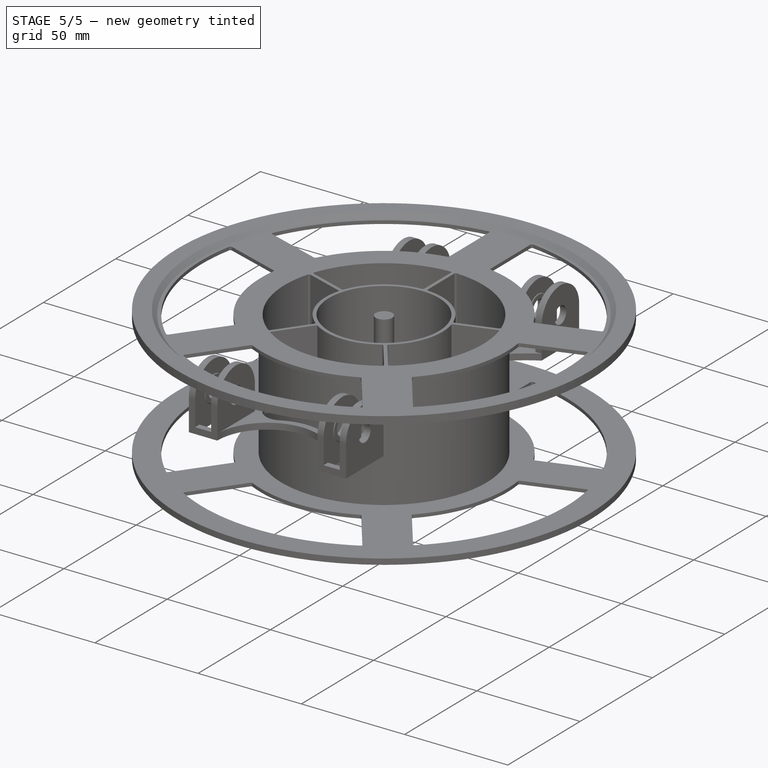
[diagram: stage 5 of 5 — iso view after this stage's code; geometry added in this stage tinted green]
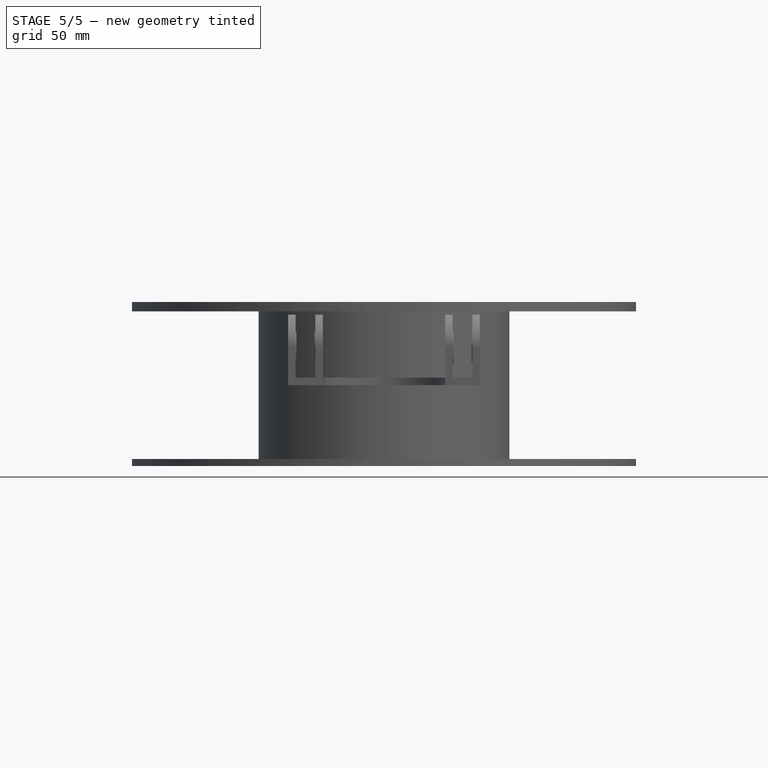
[diagram: stage 5 of 5 — front view after this stage's code; geometry added in this stage tinted green]
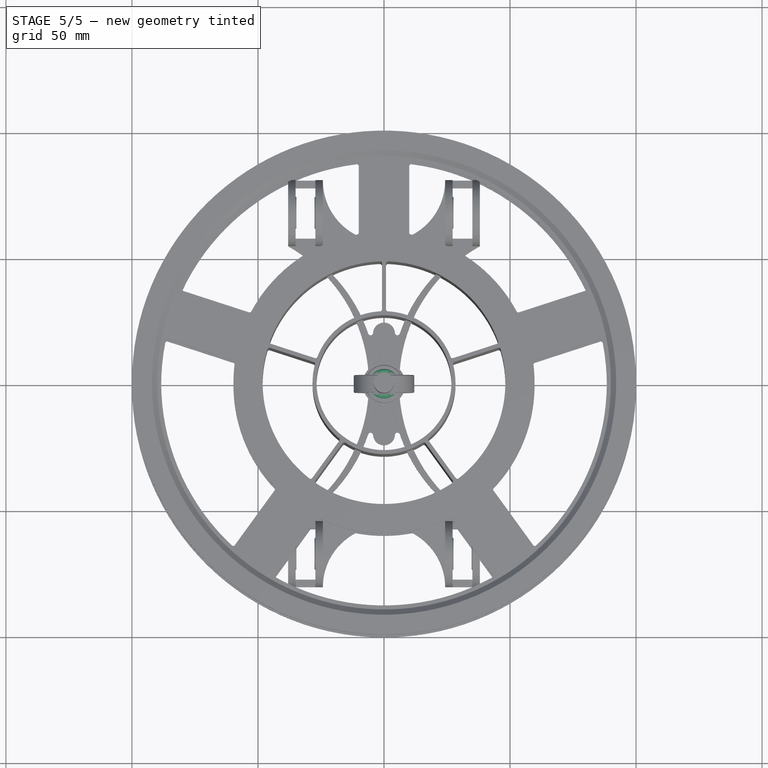
[diagram: stage 5 of 5 — top view after this stage's code; geometry added in this stage tinted green]
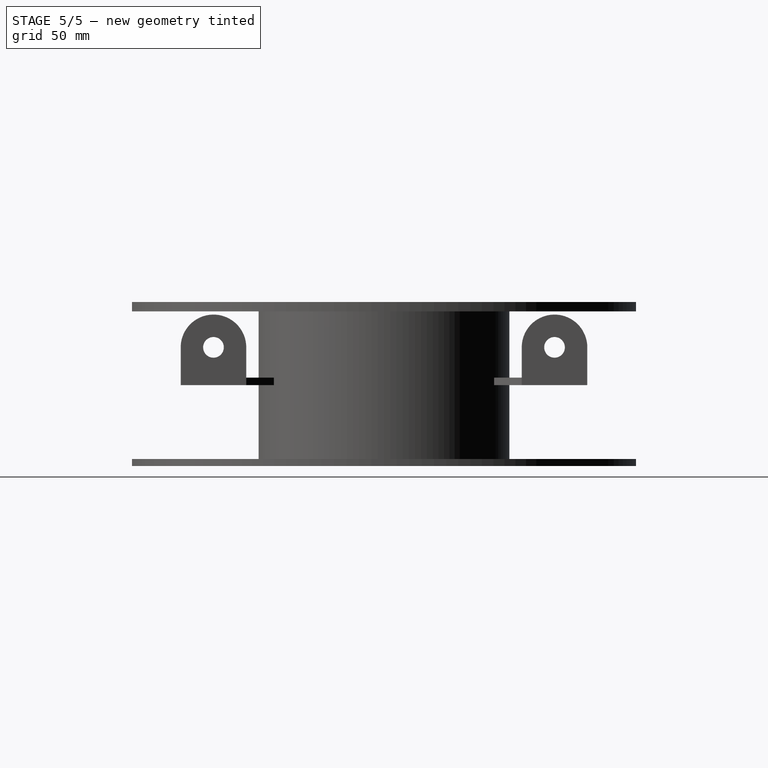
[diagram: stage 5 of 5 — right view after this stage's code; geometry added in this stage tinted green]
FEATURE [PartDesign::CoordinateSystem] LCS_Origin
  AttacherType = Attacher::AttachEngine3D
  AttachmentSupport = -> [X_Axis003]
  MapMode = 2
FEATURE [App::DocumentObjectGroup] Constraints
FEATURE [App::FeaturePython] Variables  # WARN: FeaturePython — macro-defined, semantics opaque (R4)
  Type = App::PropertyContainer
FEATURE [App::DocumentObjectGroup] Configurations
FEATURE [PartDesign::CoordinateSystem] Center
  AttacherType = Attacher::AttachEngine3D
  AttachmentSupport = -> [Revolution]
  MapMode = 45
  Placement = pos=(-9e-16,0,-1e-16) rot=(0,0.707107,0.707107;3.14159rad)
FEATURE [PartDesign::Body] Body  label="Ball Bearing"
  AllowCompound = false
  Group = -> [Sketch,Revolution,Center]
  Origin = -> Origin
  Tip = -> Revolution
FEATURE [Sketcher::SketchObject] Sketch016
  ArcFitTolerance = 1e-06
  AttachmentSupport = -> [XY_Plane004]
  FullyConstrained = true
  MakeInternals = false
  MapMode = 5
  expr: Constraints[2] = <<Spreadsheet>>.WasherOuterDiameter
  expr: Constraints[3] = <<Spreadsheet>>.WasherInnerDiameter
  sketch-geometry (2):
    g0: Circle CenterX=0 CenterY=0 CenterZ=0 NormalX=0 NormalY=0 NormalZ=1 AngleXU=0 Radius=4.2
    g1: Circle CenterX=0 CenterY=0 CenterZ=0 NormalX=0 NormalY=0 NormalZ=1 AngleXU=0 Radius=8.5
  constraints (4):
    c: Coincident(g0,g-1)
    c: Coincident(g1,g0)
    c: Diameter(g1) = 17
    c: Diameter(g0) = 8.4
FEATURE [PartDesign::Pad] Pad005
  Direction = (0,0,1)
  Length = 1.5
  Length2 = 10
  Profile = -> Sketch016
  ReferenceAxis = -> Sketch016 [N_Axis]
  Suppressed = false
  Type = 0
  expr: Length = <<Spreadsheet>>.WasherThickness
FEATURE [Sketcher::SketchObject] Sketch024
  ArcFitTolerance = 1e-06
  AttachmentSupport = -> [XY_Plane005]
  FullyConstrained = true
  MakeInternals = false
  MapMode = 5
  expr: Constraints[19] = <<Spreadsheet>>.NutHeadSize
  expr: Constraints[21] = <<Spreadsheet>>.BallBearingInnerDiameter
  sketch-geometry (8):
    g0: LineSegment StartX=7.50555 StartY=0 StartZ=0 EndX=3.75278 EndY=6.5 EndZ=0
    g1: LineSegment StartX=3.75278 StartY=6.5 StartZ=0 EndX=-3.75278 EndY=6.5 EndZ=0
    g2: LineSegment StartX=-3.75278 StartY=6.5 StartZ=0 EndX=-7.50555 EndY=1.69331e-11 EndZ=0
    g3: LineSegment StartX=-7.50555 StartY=1.69331e-11 StartZ=0 EndX=-3.75278 EndY=-6.5 EndZ=0
    g4: LineSegment StartX=-3.75278 StartY=-6.5 StartZ=0 EndX=3.75278 EndY=-6.5 EndZ=0
    g5: LineSegment StartX=3.75278 StartY=-6.5 StartZ=0 EndX=7.50555 EndY=0 EndZ=0
    g6: Circle [constr] CenterX=0 CenterY=0 CenterZ=0 NormalX=0 NormalY=0 NormalZ=1 AngleXU=0 Radius=7.50555
    g7: Circle CenterX=0 CenterY=0 CenterZ=0 NormalX=0 NormalY=0 NormalZ=1 AngleXU=0 Radius=4
  constraints (18):
    c: Coincident(g0,g1)
    c: Coincident(g1,g2)
    c: Coincident(g2,g3)
    c: Coincident(g3,g4)
    c: Coincident(g4,g5)
    c: Coincident(g5,g0)
    c: Equal(g0, g1-g5) x5
    c: PointOnObject(g0,g6)
    c: PointOnObject(g1,g6)
    c: PointOnObject(g2,g6)
    c: PointOnObject(g3,g6)
    c: PointOnObject(g4,g6)
    c: PointOnObject(g5,g6)
    c: Coincident(g6,g-1)
    c: PointOnObject(g5,g-1)
    c: DistanceY(g4,g0) = 13
    c: Coincident(g7,g6)
    c: Diameter(g7) = 8
FEATURE [PartDesign::Pad] Pad
  Direction = (0,0,1)
  Length = 5.5
  Length2 = 10
  Profile = -> Sketch024
  ReferenceAxis = -> Sketch024 [N_Axis]
  Refine = true
  Suppressed = false
  Type = 0
  expr: Length = <<Spreadsheet>>.NutHeight
FEATURE [Sketcher::SketchObject] Sketch025
  ArcFitTolerance = 1e-06
  AttachmentSupport = -> [XZ_Plane005]
  ExternalGeometry = -> [Pad]
  FullyConstrained = true
  MakeInternals = false
  MapMode = 5
  Placement = pos=(0,0,0) rot=(1,0,0;1.5708rad)
  expr: Constraints[13] = <<Spreadsheet>>.NutRoundings
  expr: Constraints[14] = <<Spreadsheet>>.NutHeadSize / 2 * 0.9
  expr: Constraints[8] = <<Spreadsheet>>.NutTotalHeight
  sketch-geometry (6):
    g0: LineSegment StartX=4 StartY=5.5 StartZ=0 EndX=5.85 EndY=5.5 EndZ=0
    g1: LineSegment StartX=5.85 StartY=5.5 StartZ=0 EndX=5.85 EndY=7.4 EndZ=0
    g2: LineSegment StartX=5.35 StartY=7.9 StartZ=0 EndX=4 EndY=7.9 EndZ=0
    g3: LineSegment StartX=4 StartY=7.9 StartZ=0 EndX=4 EndY=5.5 EndZ=0
    g4: ArcOfCircle CenterX=5.35 CenterY=7.4 CenterZ=0 NormalX=0 NormalY=0 NormalZ=1 AngleXU=0 Radius=0.5 StartAngle=0 EndAngle=1.5708
    g5: GeomPoint [constr] X=5.85 Y=7.9 Z=0
  constraints (15):
    c: Coincident(g0,g1)
    c: Coincident(g2,g3)
    c: Coincident(g3,g0)
    c: Horizontal(g0)
    c: Horizontal(g2)
    c: Vertical(g1)
    c: Vertical(g3)
    c: Coincident(g0,g-3)
    c: DistanceY(g-1,g2) = 7.9
    c: PointOnObject(g5,g1)
    c: PointOnObject(g5,g2)
    c: Tangent(g1,g4) = -1.5708
    c: Tangent(g2,g4) = -1.5708
    c: Radius(g4) = 0.5
    c: DistanceX(g1) = 5.85
FEATURE [PartDesign::Revolution] Revolution005
  Angle = 360
  Angle2 = 60
  Axis = (0,2e-16,1)
  Base = (0,0,0)
  BaseFeature = -> Pad
  Profile = -> Sketch025
  ReferenceAxis = -> Sketch025 [V_Axis]
  Refine = true
  Reversed = true
  Suppressed = false
  Type = 0
FEATURE [Sketcher::SketchObject] Sketch026
  ArcFitTolerance = 1e-06
  AttachmentSupport = -> [XZ_Plane005]
  ExternalGeometry = -> [Revolution005]
  FullyConstrained = true
  MakeInternals = false
  MapMode = 5
  Placement = pos=(0,0,0) rot=(1,0,0;1.5708rad)
  expr: Constraints[14] = <<Spreadsheet>>.NutRoundings
  expr: Constraints[15] = <<Spreadsheet>>.NutRoundings * 2
  sketch-geometry (6):
    g0: LineSegment StartX=7.50555 StartY=5.5 StartZ=0 EndX=6.50555 EndY=5.5 EndZ=0
    g1: LineSegment StartX=6.50555 StartY=5.5 StartZ=0 EndX=7.50555 EndY=5 EndZ=0
    g2: LineSegment StartX=7.50555 StartY=5 StartZ=0 EndX=7.50555 EndY=5.5 EndZ=0
    g3: LineSegment StartX=7.50555 StartY=0 StartZ=0 EndX=6.50555 EndY=0 EndZ=0
    g4: LineSegment StartX=6.50555 StartY=0 StartZ=0 EndX=7.50555 EndY=0.5 EndZ=0
    g5: LineSegment StartX=7.50555 StartY=0.5 StartZ=0 EndX=7.50555 EndY=0 EndZ=0
  constraints (16):
    c: Coincident(g-3,g0)
    c: Horizontal(g0)
    c: Coincident(g0,g1)
    c: PointOnObject(g1,g-3)
    c: Coincident(g1,g2)
    c: Coincident(g2,g0)
    c: Coincident(g-3,g3)
    c: PointOnObject(g3,g-1)
    c: Coincident(g3,g4)
    c: PointOnObject(g4,g-3)
    c: Coincident(g4,g5)
    c: Coincident(g5,g3)
    c: Equal(g5,g2)
    c: Equal(g3,g0)
    c: DistanceY(g2,g2) = 0.5
    c: DistanceX(g0,g0) = 1
FEATURE [PartDesign::Groove] Groove
  Angle = 360
  Angle2 = 60
  Axis = (0,2e-16,1)
  Base = (0,0,0)
  BaseFeature = -> Revolution005
  Profile = -> Sketch026
  ReferenceAxis = -> Sketch026 [V_Axis]
  Refine = true
  Suppressed = false
  Type = 0
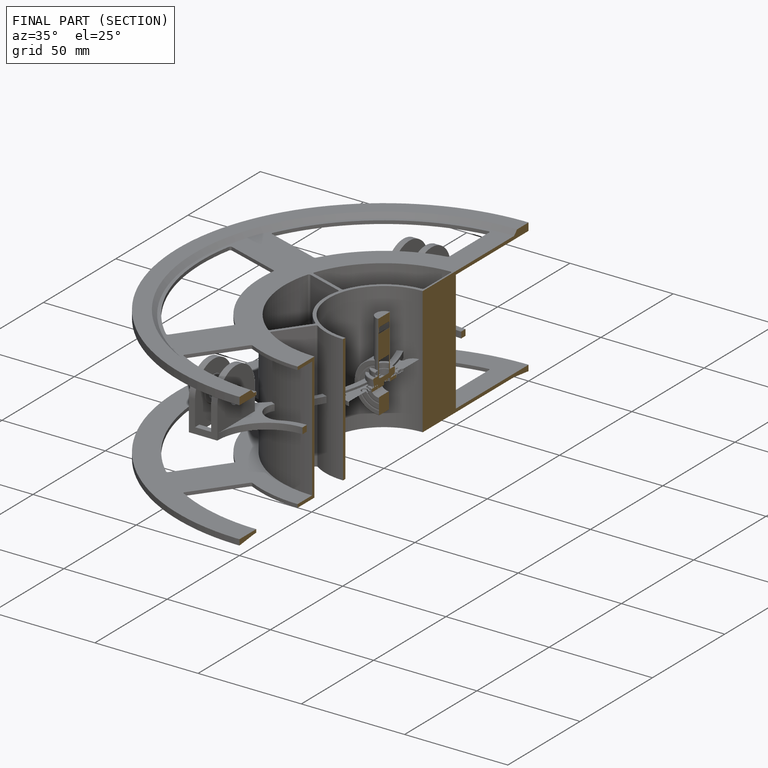
[diagram: finished part — half-section view (interior)]
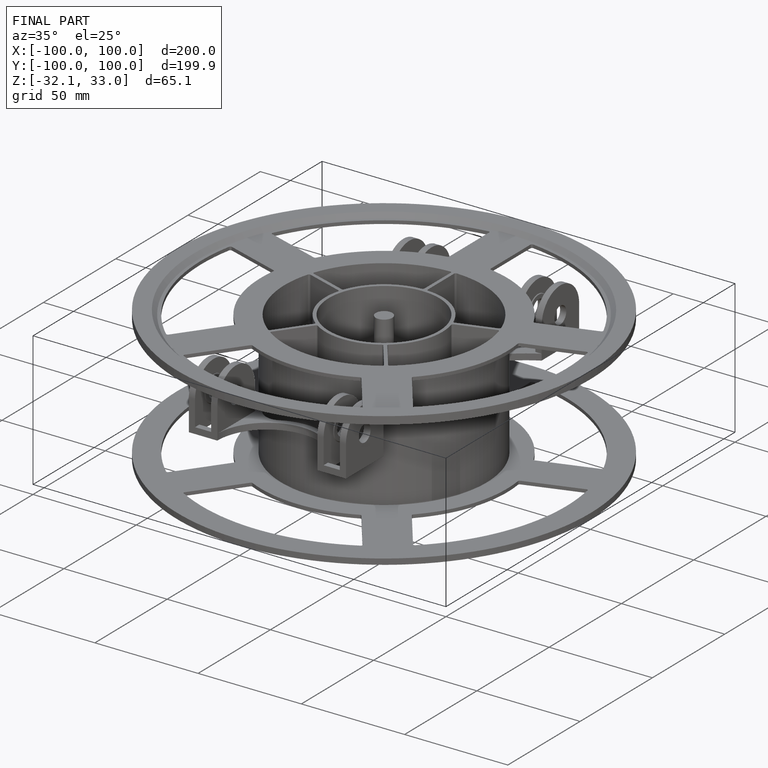
[diagram: finished part — iso view with bounding-box wireframe]
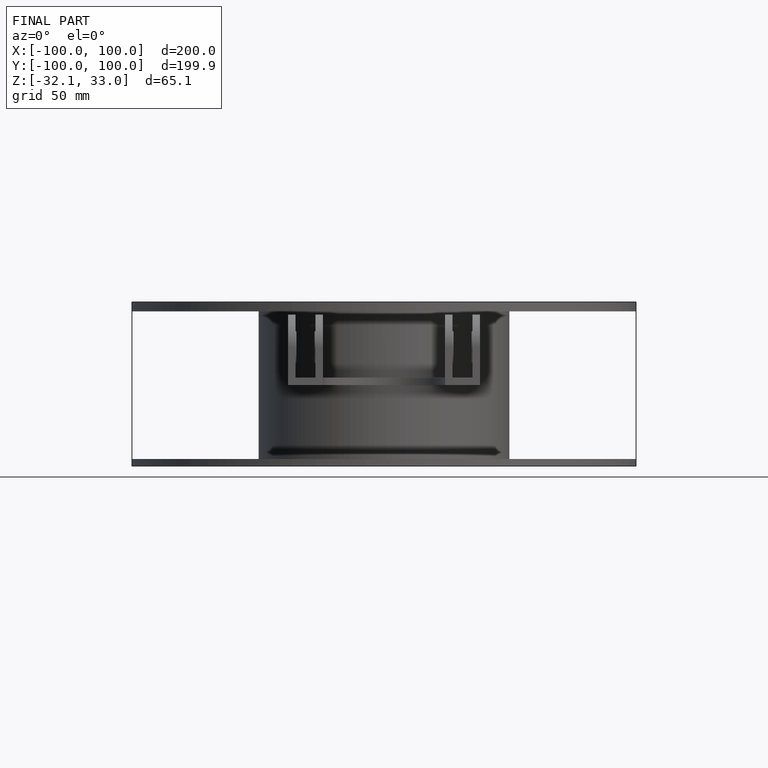
[diagram: finished part — front view with bounding-box wireframe]
